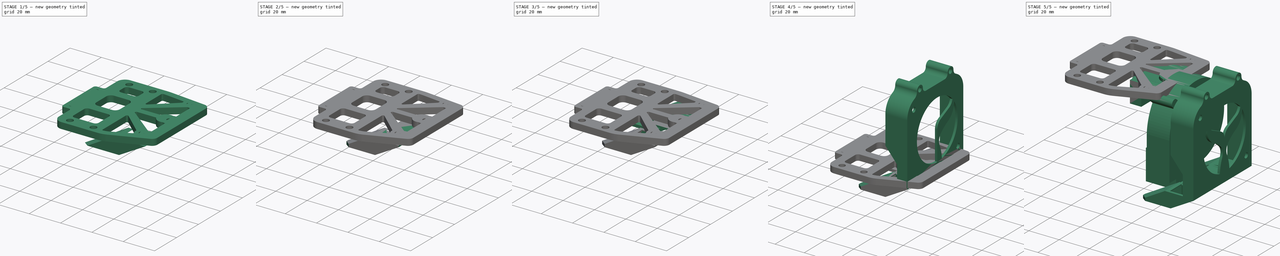
[diagram: build sequence overview — one tinted view per stage of 5, left to right]
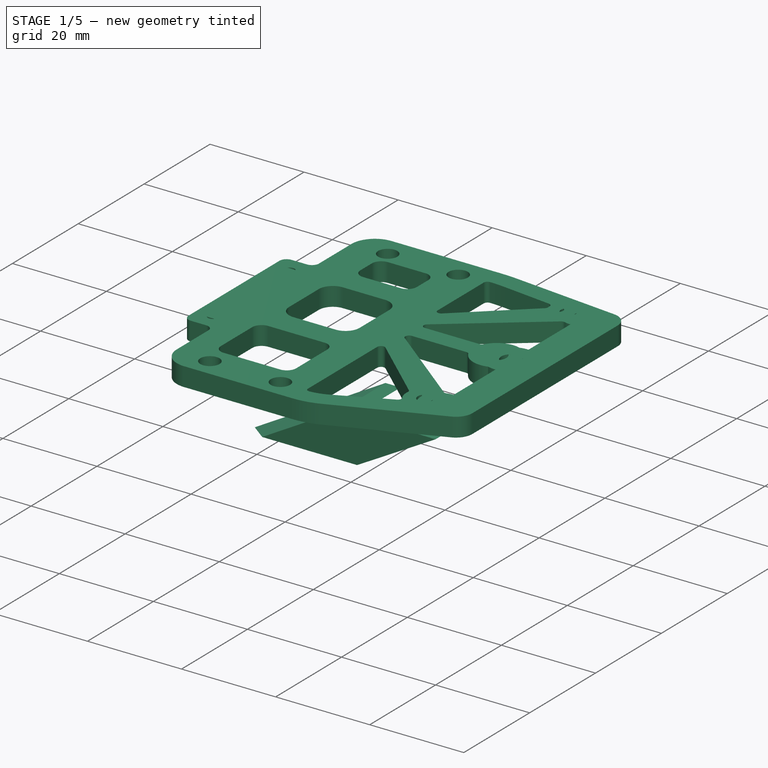
[diagram: stage 1 of 5 — iso view after this stage's code; geometry added in this stage tinted green]
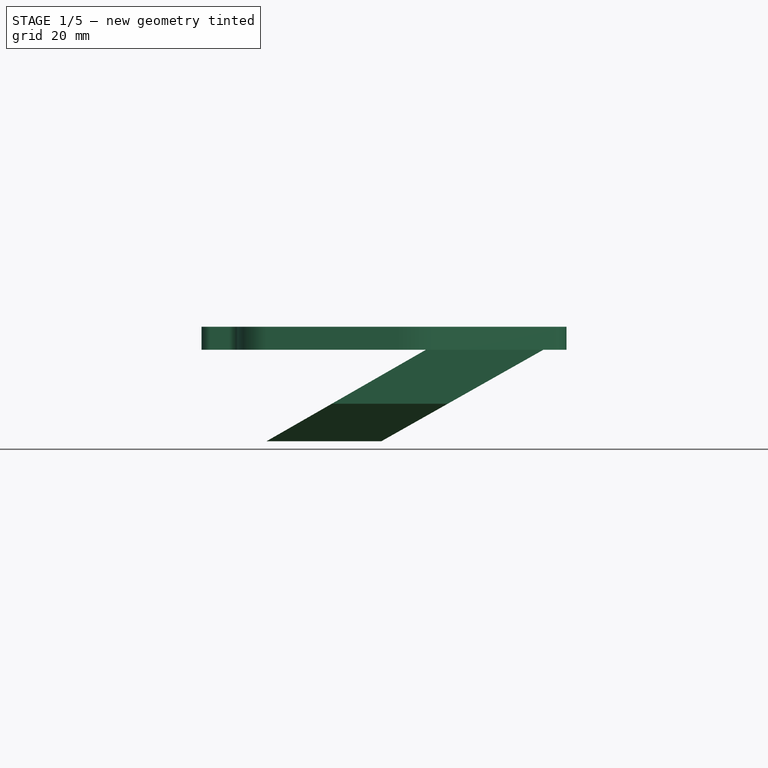
[diagram: stage 1 of 5 — front view after this stage's code; geometry added in this stage tinted green]
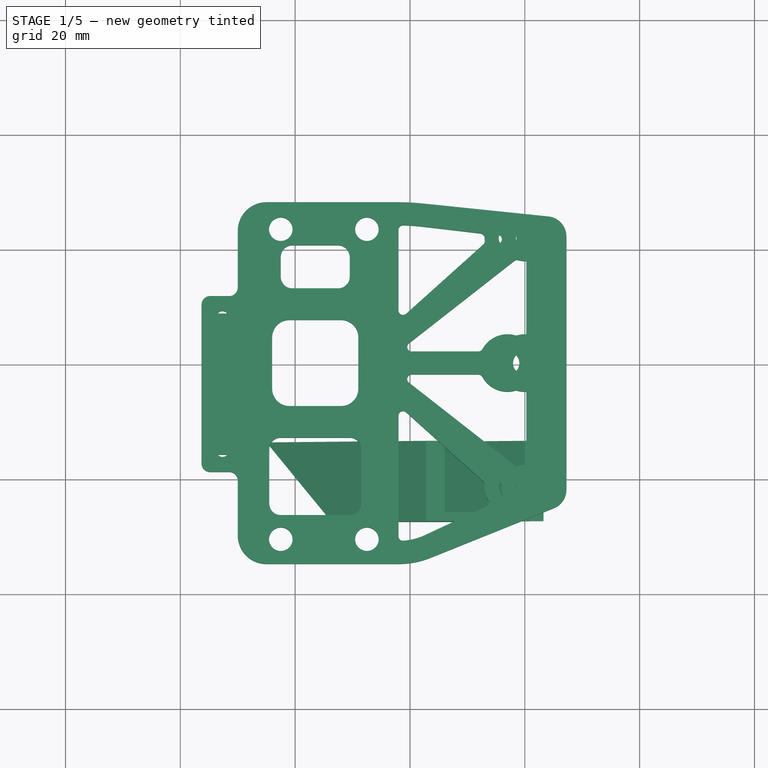
[diagram: stage 1 of 5 — top view after this stage's code; geometry added in this stage tinted green]
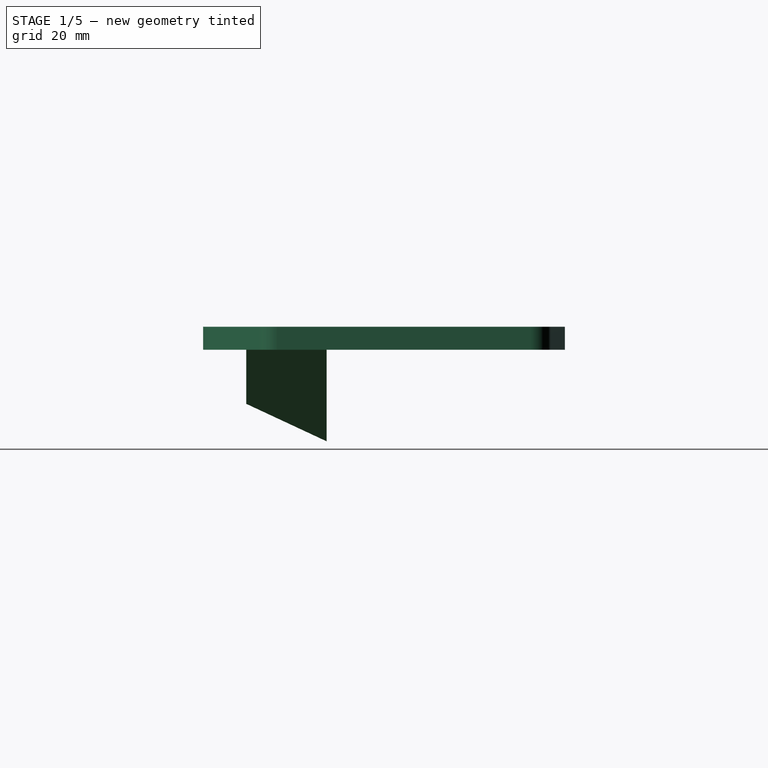
[diagram: stage 1 of 5 — right view after this stage's code; geometry added in this stage tinted green]
FCSTD DOCUMENT  (FreeCAD 0.21RUnknown)
Label: V6火山+5015+HGX+Klicky方案A
License: All rights reserved
LicenseURL: http://en.wikipedia.org/wiki/All_rights_reserved
objects: Sketcher::SketchObject×38, PartDesign::Pocket×19, PartDesign::Pad×18, Part::Feature×13, PartDesign::Body×9, PartDesign::Fillet×6, PartDesign::Chamfer×4, PartDesign::Thickness×2, Part::Fuse×2, PartDesign::Revolution×1, App::Part×1, PartDesign::Mirrored×1, Part::Mirroring×1
note: 164 computed .brp shape members not serialized (recipe doc carries the construction recipe); baked Part::Feature solids carry a one-line shape summary decoded from their .brp

FEATURE [Sketcher::SketchObject] Sketch134
  ExternalGeometry = -> [Pocket068]
  FullyConstrained = true
  MapMode = 5
  Placement = pos=(-3.4e-15,-13.5,3.9e-15) rot=(0,0.707107,0.707107;3.14159rad)
  Support = -> [Pocket068]
  sketch-geometry (7):
    g0: LineSegment StartX=-1.24e-14 StartY=-1.8e-15 StartZ=0 EndX=-1.6 EndY=1e-16 EndZ=0
    g1: LineSegment StartX=-1.6 StartY=1e-16 StartZ=0 EndX=-1.6 EndY=-0.934121 EndZ=0
    g2: LineSegment StartX=-1.6 StartY=-0.934121 StartZ=0 EndX=16.6 EndY=-11.2081 EndZ=0
    g3: LineSegment StartX=16.6 StartY=-11.2081 StartZ=0 EndX=16.6 EndY=-5.3e-15 EndZ=0
    g4: LineSegment StartX=16.6 StartY=-5.3e-15 StartZ=0 EndX=15 EndY=-4.5e-15 EndZ=0
    g5: LineSegment StartX=15 StartY=-4.5e-15 StartZ=0 EndX=15 EndY=-8.4676 EndZ=0
    g6: LineSegment StartX=15 StartY=-8.4676 StartZ=0 EndX=-1.24e-14 EndY=-1.8e-15 EndZ=0
  constraints (16):
    c: Coincident(g-4,g0)
    c: Coincident(g0,g-3)
    c: Coincident(g0,g1)
    c: Coincident(g1,g-8)
    c: Coincident(g1,g2)
    c: PointOnObject(g2,g-8)
    c: Coincident(g2,g3)
    c: PointOnObject(g3,g-6)
    c: Vertical(g3)
    c: Coincident(g3,g4)
    c: Coincident(g4,g-6)
    c: Coincident(g4,g5)
    c: Coincident(g5,g-4)
    c: Coincident(g5,g6)
    c: Coincident(g6,g0)
    c: DistanceX(g4,g3) = 1.6
FEATURE [Sketcher::SketchObject] Sketch135
  FullyConstrained = true
  MapMode = 5
  Placement = pos=(0,0,0) rot=(1,0,0;1.5708rad)
  Support = -> [XZ_Plane024]
  sketch-geometry (8):
    g0: LineSegment StartX=-25 StartY=-15.95 StartZ=0 EndX=-45 EndY=-15.95 EndZ=0
    g1: LineSegment StartX=-45 StartY=-15.95 StartZ=0 EndX=-17.2 EndY=0 EndZ=0
    g2: LineSegment StartX=3.25476 StartY=0 StartZ=0 EndX=-17.2 EndY=0 EndZ=0
    g3: GeomPoint X=-15.6 Y=0 Z=0
    g4: LineSegment StartX=-25 StartY=-15.95 StartZ=0 EndX=-25 EndY=-17.25 EndZ=0
    g5: GeomPoint X=-1.6 Y=0 Z=0
    g6: LineSegment StartX=0 StartY=0 StartZ=0 EndX=0.786541 EndY=-1.39332 EndZ=0
    g7: LineSegment StartX=3.25476 StartY=0 StartZ=0 EndX=-25 EndY=-15.95 EndZ=0
  constraints (22):
    c: PointOnObject(g2,g-1)
    c: Horizontal(g0)
    c: Coincident(g0,g1)
    c: Coincident(g2,g1)
    c: Horizontal(g2)
    c: DistanceX(g0,g0) = 20
    c: PointOnObject(g3,g2)
    c: DistanceX(g1,g3) = 1.6
    c: Vertical(g4)
    c: Distance(g4) = 1.3
    c: PointOnObject(g5,g2)
    c: DistanceX(g5,g-1) = 1.6
    c: DistanceX(g3,g5) = 14
    c: DistanceX(g0,g-1) = 25
    c: Coincident(g6,g-1)
    c: Coincident(g7,g2)
    c: Coincident(g7,g0)
    c: PointOnObject(g6,g7)
    c: Perpendicular(g7,g6)
    c: Distance(g6) = 1.6
    c: DistanceY(g4,g6) = 17.25
    c: Coincident(g0,g4)
FEATURE [PartDesign::Pad] Pad050
  Direction = (0,-1,-2e-16)
  Length = 27.5
  Length2 = 10
  Placement = pos=(0,0,0) rot=(1,0,0;1.5708rad)
  Profile = -> Sketch135
  ReferenceAxis = -> Sketch135 [N_Axis]
  Type = 0
FEATURE [Sketcher::SketchObject] Sketch136
  ExternalGeometry = -> [Pad050]
  FullyConstrained = true
  MapMode = 5
  Placement = pos=(0,0,0) rot=(0.57735,0.57735,0.57735;2.0944rad)
  Support = -> [YZ_Plane024]
  sketch-geometry (11):
    g0: LineSegment StartX=-27.5 StartY=-9.42169 StartZ=0 EndX=-13.5 EndY=-15.95 EndZ=0
    g1: LineSegment StartX=-13.5 StartY=-15.95 StartZ=0 EndX=-13.5 EndY=0 EndZ=0
    g2: LineSegment StartX=-13.5 StartY=0 StartZ=0 EndX=0 EndY=0 EndZ=0
    g3: LineSegment StartX=0 StartY=0 StartZ=0 EndX=-4.9e-15 EndY=-15.95 EndZ=0
    g4: LineSegment StartX=-4.9e-15 StartY=-15.95 StartZ=0 EndX=0 EndY=-16.6571 EndZ=0
    g5: LineSegment StartX=0 StartY=-16.6571 StartZ=0 EndX=-28.2071 EndY=-16.6571 EndZ=0
    g6: LineSegment StartX=-28.2071 StartY=-16.6571 StartZ=0 EndX=-28.2071 EndY=0 EndZ=0
    g7: LineSegment StartX=-28.2071 StartY=0 StartZ=0 EndX=-27.5 EndY=-1.46e-14 EndZ=0
    g8: LineSegment StartX=-27.5 StartY=-1.46e-14 StartZ=0 EndX=-27.5 EndY=-9.42169 EndZ=0
    g9: LineSegment StartX=-27.5 StartY=-15.95 StartZ=0 EndX=-27.5 EndY=-16.6571 EndZ=0
    g10: LineSegment StartX=-27.5 StartY=-15.95 StartZ=0 EndX=-28.2071 EndY=-15.95 EndZ=0
  constraints (31):
    c: PointOnObject(g0,g-3)
    c: PointOnObject(g0,g-4)
    c: Coincident(g0,g1)
    c: PointOnObject(g1,g-1)
    c: Vertical(g1)
    c: Coincident(g1,g2)
    c: Coincident(g2,g-1)
    c: Coincident(g2,g3)
    c: Coincident(g3,g-4)
    c: Coincident(g3,g4)
    c: PointOnObject(g4,g-2)
    c: Coincident(g4,g5)
    c: Horizontal(g5)
    c: Coincident(g5,g6)
    c: PointOnObject(g6,g-1)
    c: Vertical(g6)
    c: Coincident(g6,g7)
    c: Coincident(g7,g-3)
    c: Coincident(g7,g8)
    c: Coincident(g8,g0)
    c: Angle(g0,g8) = 2.00713
    c: Angle(g0,g-4) = 0.436332
    c: DistanceX(g7,g1) = 14
    c: Coincident(g9,g-4)
    c: PointOnObject(g9,g5)
    c: Vertical(g9)
    c: Coincident(g10,g9)
    c: PointOnObject(g10,g6)
    c: Horizontal(g10)
    c: Equal(g9,g10)
    c: Distance(g9,g5) = 1
FEATURE [PartDesign::Pocket] Pocket069
  BaseFeature = -> Pad050
  Direction = (-1,2e-16,-3e-16)
  Length = 50
  Length2 = 20
  Placement = pos=(0,0,0) rot=(1,0,0;1.5708rad)
  Profile = -> Sketch136
  ReferenceAxis = -> Sketch136 [N_Axis]
  Type = 4
FEATURE [PartDesign::Thickness] Thickness001
  Base = -> Pocket069 [Face3,Face6]
  BaseFeature = -> Pocket069
  Intersection = false
  Join = 1
  Mode = 2
  Reversed = true
  SupportTransform = false
  Value = 1.6
FEATURE [Sketcher::SketchObject] Sketch149
  FullyConstrained = true
  MapMode = 5
  Support = -> [XY_Plane026]
  sketch-geometry (7):
    g0: LineSegment StartX=0 StartY=-1.61658 StartZ=0 EndX=1.4 EndY=-0.80829 EndZ=0
    g1: LineSegment StartX=1.4 StartY=-0.80829 StartZ=0 EndX=1.4 EndY=0.80829 EndZ=0
    g2: LineSegment StartX=1.4 StartY=0.80829 StartZ=0 EndX=0 EndY=1.61658 EndZ=0
    g3: LineSegment StartX=0 StartY=1.61658 StartZ=0 EndX=-1.4 EndY=0.80829 EndZ=0
    g4: LineSegment StartX=-1.4 StartY=0.80829 StartZ=0 EndX=-1.4 EndY=-0.80829 EndZ=0
    g5: LineSegment StartX=-1.4 StartY=-0.80829 StartZ=0 EndX=0 EndY=-1.61658 EndZ=0
    g6: Circle CenterX=0 CenterY=0 CenterZ=0 NormalX=0 NormalY=0 NormalZ=1 AngleXU=0 Radius=1.61658
  constraints (17):
    c: Coincident(g0,g1)
    c: Coincident(g1,g2)
    c: Coincident(g2,g3)
    c: Coincident(g3,g4)
    c: Coincident(g4,g5)
    c: Coincident(g5,g0)
    c: Equal(g0, g1-g5) x5
    c: PointOnObject(g0,g6)
    c: PointOnObject(g1,g6)
    c: PointOnObject(g2,g6)
    c: PointOnObject(g3,g6)
    c: PointOnObject(g4,g6)
    c: PointOnObject(g5,g6)
    c: Coincident(g6,g-1)
    c: PointOnObject(g5,g-2)
    c: DistanceY(g0,g2) = 3.23316
    c: DistanceX(g4,g0) = 2.8
FEATURE [PartDesign::Body] Body021  label="Body"
  Group = -> [Sketch149]
  Origin = -> Origin026
FEATURE [Sketcher::SketchObject] Sketch152
  FullyConstrained = false
  MapMode = 5
  Support = -> [XY_Plane027]
  sketch-geometry (41):
    g0: LineSegment StartX=-22 StartY=28 StartZ=0 EndX=-45 EndY=28 EndZ=0
    g1: LineSegment StartX=-56.3 StartY=7.1 StartZ=0 EndX=-56.3 EndY=-17.47 EndZ=0
    g2: LineSegment StartX=-45 StartY=-35 StartZ=0 EndX=-22 EndY=-35 EndZ=0
    g3: Circle CenterX=0 CenterY=21.75 CenterZ=0 NormalX=0 NormalY=0 NormalZ=1 AngleXU=0 Radius=1.55
    g4: Circle CenterX=0 CenterY=-21.75 CenterZ=0 NormalX=0 NormalY=0 NormalZ=1 AngleXU=0 Radius=1.55
    g5: LineSegment StartX=-16.4011 StartY=-33.9159 StartZ=0 EndX=5.0564 EndY=-25.2828 EndZ=0
    g6: LineSegment StartX=7.25 StartY=22.0357 StartZ=0 EndX=7.25 EndY=-22.0357 EndZ=0
    g7: ArcOfCircle CenterX=3.75 CenterY=22.0357 CenterZ=0 NormalX=0 NormalY=0 NormalZ=1 AngleXU=0 Radius=3.5 StartAngle=-9e-16 EndAngle=1.46793
    g8: ArcOfCircle CenterX=3.75 CenterY=-22.0357 CenterZ=0 NormalX=0 NormalY=0 NormalZ=1 AngleXU=0 Radius=3.5 StartAngle=5.09491 EndAngle=6.28319
    g9: Circle CenterX=0 CenterY=0 CenterZ=0 NormalX=0 NormalY=0 NormalZ=1 AngleXU=0 Radius=2.05
    g10: Circle CenterX=-42.5 CenterY=-30.7 CenterZ=0 NormalX=0 NormalY=0 NormalZ=1 AngleXU=0 Radius=2.05
    g11: Circle CenterX=-27.5 CenterY=-30.7 CenterZ=0 NormalX=0 NormalY=0 NormalZ=1 AngleXU=0 Radius=2.05
    g12: Circle CenterX=-42.5 CenterY=23.3 CenterZ=0 NormalX=0 NormalY=0 NormalZ=1 AngleXU=0 Radius=2.05
    g13: Circle CenterX=-27.5 CenterY=23.3 CenterZ=0 NormalX=0 NormalY=0 NormalZ=1 AngleXU=0 Radius=2.05
    g14: LineSegment StartX=33.6714 StartY=25.5172 StartZ=0 EndX=33.6714 EndY=-25.2828 EndZ=0
    g15: LineSegment StartX=33.6714 StartY=-25.2828 StartZ=0 EndX=58.1714 EndY=-25.2828 EndZ=0
    g16: LineSegment StartX=58.1714 StartY=-25.2828 StartZ=0 EndX=58.1714 EndY=25.5172 EndZ=0
    g17: LineSegment StartX=58.1714 StartY=25.5172 StartZ=0 EndX=33.6714 EndY=25.5172 EndZ=0
    g18: LineSegment StartX=58.1714 StartY=-21.7828 StartZ=0 EndX=54.6714 EndY=-25.2828 EndZ=0
    g19: LineSegment StartX=54.6714 StartY=25.5172 StartZ=0 EndX=58.1714 EndY=22.0172 EndZ=0
    g20: Circle CenterX=-52.65 CenterY=5 CenterZ=0 NormalX=0 NormalY=0 NormalZ=1 AngleXU=0 Radius=1.05
    g21: Circle CenterX=-52.65 CenterY=-15.32 CenterZ=0 NormalX=0 NormalY=0 NormalZ=1 AngleXU=0 Radius=1.05
    g22: Circle CenterX=-52.65 CenterY=-15.32 CenterZ=0 NormalX=0 NormalY=0 NormalZ=1 AngleXU=0 Radius=1.65
    g23: GeomPoint X=-51 Y=-15.32 Z=0
    g24: GeomPoint X=-54.3 Y=-15.32 Z=0
    g25: LineSegment StartX=-50 StartY=-20.47 StartZ=0 EndX=-50 EndY=-30 EndZ=0
    g26: LineSegment StartX=-51.5 StartY=-18.97 StartZ=0 EndX=-54.8 EndY=-18.97 EndZ=0
    g27: LineSegment StartX=-50 StartY=23 StartZ=0 EndX=-50 EndY=10.1 EndZ=0
    g28: LineSegment StartX=-51.5 StartY=8.6 StartZ=0 EndX=-54.8 EndY=8.6 EndZ=0
    g29: ArcOfCircle CenterX=-45 CenterY=-30 CenterZ=0 NormalX=0 NormalY=0 NormalZ=1 AngleXU=0 Radius=5 StartAngle=3.14159 EndAngle=4.71239
    g30: ArcOfCircle CenterX=-51.5 CenterY=-20.47 CenterZ=0 NormalX=0 NormalY=0 NormalZ=1 AngleXU=0 Radius=1.5 StartAngle=0 EndAngle=1.5708
    g31: ArcOfCircle CenterX=-54.8 CenterY=-17.47 CenterZ=0 NormalX=0 NormalY=0 NormalZ=1 AngleXU=0 Radius=1.5 StartAngle=3.14159 EndAngle=4.71239
    g32: ArcOfCircle CenterX=-54.8 CenterY=7.1 CenterZ=0 NormalX=0 NormalY=0 NormalZ=1 AngleXU=0 Radius=1.5 StartAngle=1.5708 EndAngle=3.14159
    g33: ArcOfCircle CenterX=-45 CenterY=23 CenterZ=0 NormalX=0 NormalY=0 NormalZ=1 AngleXU=0 Radius=5 StartAngle=1.5708 EndAngle=3.14159
    g34: ArcOfCircle CenterX=-51.5 CenterY=10.1 CenterZ=0 NormalX=0 NormalY=0 NormalZ=1 AngleXU=0 Radius=1.5 StartAngle=4.71239 EndAngle=6.28319
    g35: GeomPoint X=-52.65 Y=-16.97 Z=0
    g36: Circle CenterX=-52.65 CenterY=5 CenterZ=0 NormalX=0 NormalY=0 NormalZ=1 AngleXU=0 Radius=1.6
    g37: GeomPoint X=-52.65 Y=6.6 Z=0
    g38: ArcOfCircle CenterX=-22 CenterY=-20 CenterZ=0 NormalX=0 NormalY=0 NormalZ=1 AngleXU=0 Radius=15 StartAngle=4.71239 EndAngle=5.09491
    g39: ArcOfCircle CenterX=-22 CenterY=-12 CenterZ=0 NormalX=0 NormalY=0 NormalZ=1 AngleXU=0 Radius=40 StartAngle=1.46793 EndAngle=1.5708
    g40: LineSegment StartX=-17.8925 StartY=27.7885 StartZ=0 EndX=4.10941 EndY=25.5172 EndZ=0
  constraints (103):
    c: Horizontal(g0)
    c: Vertical(g1)
    c: Horizontal(g2)
    c: Symmetric(g4,g3,g-1)
    c: PointOnObject(g4,g-2)
    c: Equal(g3,g4)
    c: DistanceY(g4,g3) = 43.5
    c: Diameter(g4) = 3.1
    c: Tangent(g6,g7) = 1.5708
    c: Tangent(g6,g8) = 1.5708
    c: Tangent(g5,g8) = -1.5708
    c: Equal(g7,g8)
    c: Radius(g8) = 3.5
    c: Symmetric(g6,g6,g-1)
    c: DistanceX(g-1,g6) = 7.25
    c: Coincident(g9,g-1)
    c: Diameter(g9) = 4.1
    c: Equal(g11,g10)
    c: Equal(g10,g12)
    c: Equal(g13,g12)
    c: Diameter(g11) = 4.1
    c: Horizontal(g10,g11)
    c: Horizontal(g12,g13)
    c: DistanceY(g13,g0) = 4.7
    c: DistanceX(g13,g0) = 5.5
    c: DistanceX(g12,g13) = 15
    c: DistanceX(g10,g11) = 15
    c: Vertical(g14)
    c: Coincident(g14,g15)
    c: Horizontal(g15)
    c: Coincident(g15,g16)
    c: Vertical(g16)
    c: Coincident(g16,g17)
    c: Coincident(g17,g14)
    c: Horizontal(g17)
    c: DistanceY(g16,g16) = 50.8
    c: DistanceX(g15,g15) = 24.5
    c: PointOnObject(g18,g16)
    c: PointOnObject(g18,g15)
    c: PointOnObject(g19,g16)
    c: Angle(g15,g18) = 0.785398
    c: DistanceY(g15,g18) = 3.5
    c: Angle(g16,g19) = 0.785398
    c: PointOnObject(g19,g17)
    c: DistanceY(g19,g16) = 3.5
    c: Equal(g20,g21)
    c: Diameter(g21) = 2.1
    c: Coincident(g22,g21)
    c: Diameter(g22) = 3.3
    c: PointOnObject(g23,g22)
    c: Horizontal(g22,g23)
    c: PointOnObject(g24,g22)
    c: Horizontal(g22,g24)
    c: DistanceY(g21,g20) = 20.32
    c: Horizontal(g18,g5)
    c: Vertical(g20,g21)
    c: DistanceY(g-1,g20) = 5
    c: Vertical(g25)
    c: Horizontal(g26)
    c: Vertical(g27)
    c: Horizontal(g28)
    c: DistanceY(g-1,g0) = 28
    c: Tangent(g25,g29) = -1.5708
    c: Tangent(g2,g29) = -1.5708
    c: Tangent(g26,g30) = -1.5708
    c: Tangent(g25,g30) = 1.5708
    c: Tangent(g1,g31) = -1.5708
    c: Tangent(g26,g31) = 1.5708
    c: Tangent(g28,g32) = -1.5708
    c: Tangent(g1,g32) = -1.5708
    c: Tangent(g0,g33) = -1.5708
    c: Tangent(g27,g33) = -1.5708
    c: Tangent(g27,g34) = 1.5708
    c: Tangent(g28,g34) = 1.5708
    c: DistanceX(g27,g0) = 28
    c: Equal(g29,g33)
    c: Equal(g32,g31)
    c: Equal(g34,g30)
    c: Radius(g29) = 5
    c: PointOnObject(g35,g22)
    c: Vertical(g35,g21)
    c: DistanceX(g23,g25) = 1
    c: Radius(g30) = 1.5
    c: Radius(g31) = 1.5
    c: DistanceY(g26,g35) = 2
    c: DistanceX(g1,g24) = 2
    c: Diameter(g36) = 3.2
    c: PointOnObject(g37,g36)
    c: Vertical(g36,g37)
    c: Coincident(g20,g36)
    c: DistanceY(g37,g28) = 2
    c: Tangent(g5,g38) = -1.5708
    c: Tangent(g2,g38) = -1.5708
    c: DistanceX(g2) = -45
    c: DistanceY(g2) = -35
    c: DistanceX(g2,g2) = 23
    c: Vertical(g25,g27)
    c: Tangent(g40,g39) = 1.5708
    c: Tangent(g40,g7) = 1.5708
    c: Tangent(g39,g0) = -1.5708
    c: DistanceY(g5,g7) = 50.8
    c: Radius(g39) = 40
    c: Radius(g38) = 15
FEATURE [PartDesign::Pad] Pad060
  Direction = (0,0,1)
  Length = 4
  Length2 = 10
  Profile = -> Sketch152
  ReferenceAxis = -> Sketch152 [N_Axis]
  Type = 0
FEATURE [Sketcher::SketchObject] Sketch153
  FullyConstrained = true
  MapMode = 5
  Placement = pos=(0,0,4) rot=(0,0,1;0rad)
  Support = -> [Pad060]
  sketch-geometry (30):
    g0: LineSegment StartX=-42.5 StartY=-26.5 StartZ=0 EndX=-30.5 EndY=-26.5 EndZ=0
    g1: LineSegment StartX=-28.5 StartY=-24.5 StartZ=0 EndX=-28.5 EndY=-15 EndZ=0
    g2: LineSegment StartX=-30.5 StartY=-13 StartZ=0 EndX=-42.5 EndY=-13 EndZ=0
    g3: LineSegment StartX=-44.5 StartY=-15 StartZ=0 EndX=-44.5 EndY=-24.5 EndZ=0
    g4: ArcOfCircle CenterX=-42.5 CenterY=-24.5 CenterZ=0 NormalX=0 NormalY=0 NormalZ=1 AngleXU=0 Radius=2 StartAngle=3.14159 EndAngle=4.71239
    g5: ArcOfCircle CenterX=-30.5 CenterY=-24.5 CenterZ=0 NormalX=0 NormalY=0 NormalZ=1 AngleXU=0 Radius=2 StartAngle=4.71239 EndAngle=6.28319
    g6: ArcOfCircle CenterX=-30.5 CenterY=-15 CenterZ=0 NormalX=0 NormalY=0 NormalZ=1 AngleXU=0 Radius=2 StartAngle=0 EndAngle=1.5708
    g7: ArcOfCircle CenterX=-42.5 CenterY=-15 CenterZ=0 NormalX=0 NormalY=0 NormalZ=1 AngleXU=0 Radius=2 StartAngle=1.5708 EndAngle=3.14159
    g8: GeomPoint X=-44.5 Y=-26.5 Z=0
    g9: GeomPoint X=-28.5 Y=-13 Z=0
    g10: LineSegment StartX=-41 StartY=-7.5 StartZ=0 EndX=-32 EndY=-7.5 EndZ=0
    g11: LineSegment StartX=-29 StartY=-4.5 StartZ=0 EndX=-29 EndY=4.5 EndZ=0
    g12: LineSegment StartX=-32 StartY=7.5 StartZ=0 EndX=-41 EndY=7.5 EndZ=0
    g13: LineSegment StartX=-44 StartY=4.5 StartZ=0 EndX=-44 EndY=-4.5 EndZ=0
    g14: ArcOfCircle CenterX=-41 CenterY=-4.5 CenterZ=0 NormalX=0 NormalY=0 NormalZ=1 AngleXU=0 Radius=3 StartAngle=3.14159 EndAngle=4.71239
    g15: ArcOfCircle CenterX=-32 CenterY=-4.5 CenterZ=0 NormalX=0 NormalY=0 NormalZ=1 AngleXU=0 Radius=3 StartAngle=4.71239 EndAngle=6.28319
    g16: ArcOfCircle CenterX=-32 CenterY=4.5 CenterZ=0 NormalX=0 NormalY=0 NormalZ=1 AngleXU=0 Radius=3 StartAngle=0 EndAngle=1.5708
    g17: ArcOfCircle CenterX=-41 CenterY=4.5 CenterZ=0 NormalX=0 NormalY=0 NormalZ=1 AngleXU=0 Radius=3 StartAngle=1.5708 EndAngle=3.14159
    g18: GeomPoint X=-44 Y=-7.5 Z=0
    g19: GeomPoint X=-29 Y=7.5 Z=0
    g20: LineSegment StartX=-40.5 StartY=13 StartZ=0 EndX=-32.5 EndY=13 EndZ=0
    g21: LineSegment StartX=-30.5 StartY=15 StartZ=0 EndX=-30.5 EndY=18.5 EndZ=0
    g22: LineSegment StartX=-32.5 StartY=20.5 StartZ=0 EndX=-40.5 EndY=20.5 EndZ=0
    g23: LineSegment StartX=-42.5 StartY=18.5 StartZ=0 EndX=-42.5 EndY=15 EndZ=0
    g24: ArcOfCircle CenterX=-40.5 CenterY=15 CenterZ=0 NormalX=0 NormalY=0 NormalZ=1 AngleXU=0 Radius=2 StartAngle=3.14159 EndAngle=4.71239
    g25: ArcOfCircle CenterX=-32.5 CenterY=15 CenterZ=0 NormalX=0 NormalY=0 NormalZ=1 AngleXU=0 Radius=2 StartAngle=4.71239 EndAngle=6.28319
    g26: ArcOfCircle CenterX=-32.5 CenterY=18.5 CenterZ=0 NormalX=0 NormalY=0 NormalZ=1 AngleXU=0 Radius=2 StartAngle=0 EndAngle=1.5708
    g27: ArcOfCircle CenterX=-40.5 CenterY=18.5 CenterZ=0 NormalX=0 NormalY=0 NormalZ=1 AngleXU=0 Radius=2 StartAngle=1.5708 EndAngle=3.14159
    g28: GeomPoint X=-42.5 Y=13 Z=0
    g29: GeomPoint X=-30.5 Y=20.5 Z=0
  constraints (72):
    c: Tangent(g0,g4) = -1.5708
    c: Tangent(g0,g5) = -1.5708
    c: Tangent(g1,g5) = -1.5708
    c: Tangent(g1,g6) = -1.5708
    c: Tangent(g2,g6) = -1.5708
    c: Tangent(g2,g7) = -1.5708
    c: Tangent(g3,g7) = -1.5708
    c: Tangent(g3,g4) = -1.5708
    c: Horizontal(g0)
    c: Horizontal(g2)
    c: Vertical(g1)
    c: Vertical(g3)
    c: Equal(g4,g5)
    c: Equal(g5,g6)
    c: Equal(g6,g7)
    c: PointOnObject(g8,g0)
    c: PointOnObject(g8,g3)
    c: PointOnObject(g9,g1)
    c: PointOnObject(g9,g2)
    c: Radius(g5) = 2
    c: DistanceX(g0,g0) = 12
    c: DistanceY(g1,g1) = 9.5
    c: Tangent(g10,g14) = -1.5708
    c: Tangent(g10,g15) = -1.5708
    c: Tangent(g11,g15) = -1.5708
    c: Tangent(g11,g16) = -1.5708
    c: Tangent(g12,g16) = -1.5708
    c: Tangent(g12,g17) = -1.5708
    c: Tangent(g13,g17) = -1.5708
    c: Tangent(g13,g14) = -1.5708
    c: Horizontal(g10)
    c: Horizontal(g12)
    c: Vertical(g11)
    c: Vertical(g13)
    c: Equal(g14,g15)
    c: Equal(g15,g16)
    c: Equal(g16,g17)
    c: PointOnObject(g18,g10)
    c: PointOnObject(g18,g13)
    c: PointOnObject(g19,g11)
    c: PointOnObject(g19,g12)
    c: Radius(g15) = 3
    c: DistanceY(g11,g11) = 9
    c: DistanceX(g10,g10) = 9
    c: Tangent(g20,g24) = -1.5708
    c: Tangent(g20,g25) = -1.5708
    c: Tangent(g21,g25) = -1.5708
    c: Tangent(g21,g26) = -1.5708
    c: Tangent(g22,g26) = -1.5708
    c: Tangent(g22,g27) = -1.5708
    c: Tangent(g23,g27) = -1.5708
    c: Tangent(g23,g24) = -1.5708
    c: Horizontal(g20)
    c: Horizontal(g22)
    c: Vertical(g21)
    c: Vertical(g23)
    c: Equal(g24,g25)
    c: Equal(g25,g26)
    c: Equal(g26,g27)
    c: PointOnObject(g28,g20)
    c: PointOnObject(g28,g23)
    c: PointOnObject(g29,g21)
    c: PointOnObject(g29,g22)
    c: Radius(g25) = 2
    c: DistanceX(g22,g22) = 8
    c: DistanceY(g21,g21) = 3.5
    c: DistanceY(g9,g18) = 5.5
    c: DistanceX(g18,g9) = 15.5
    c: DistanceY(g19,g28) = 5.5
    c: DistanceX(g28,g19) = 13.5
    c: DistanceX(g19,g-1) = 29
    c: DistanceY(g-1,g19) = 7.5
FEATURE [PartDesign::Pocket] Pocket075
  BaseFeature = -> Pad060
  Direction = (0,0,-1)
  Length = 5
  Length2 = 5
  Profile = -> Sketch153
  ReferenceAxis = -> Sketch153 [N_Axis]
  Type = 1
FEATURE [Sketcher::SketchObject] Sketch154
  ExternalGeometry = -> [Pocket075]
  FullyConstrained = false
  MapMode = 5
  Placement = pos=(0,0,4) rot=(0,0,1;0rad)
  Support = -> [Pocket075]
  sketch-geometry (35):
    g0: ArcOfCircle CenterX=0 CenterY=0 CenterZ=0 NormalX=0 NormalY=0 NormalZ=1 AngleXU=0 Radius=5 StartAngle=3.55311 EndAngle=5.41997
    g1: ArcOfCircle CenterX=0 CenterY=-21.75 CenterZ=0 NormalX=0 NormalY=0 NormalZ=1 AngleXU=0 Radius=4 StartAngle=0.622368 EndAngle=1.95414
    g2: ArcOfCircle CenterX=0 CenterY=21.75 CenterZ=0 NormalX=0 NormalY=0 NormalZ=1 AngleXU=0 Radius=4 StartAngle=2.99639 EndAngle=3.28185
    g3: LineSegment StartX=3.25 StartY=19.4182 StartZ=0 EndX=3.25 EndY=3.79967 EndZ=0
    g4: LineSegment StartX=-3.95791 StartY=22.3288 StartZ=0 EndX=-18.3033 EndY=23.8097 EndZ=0
    g5: LineSegment StartX=-22 StartY=24 StartZ=0 EndX=-22 EndY=7.07858 EndZ=0
    g6: LineSegment StartX=-22 StartY=7.07858 StartZ=0 EndX=-3.96072 EndY=21.1908 EndZ=0
    g7: LineSegment StartX=-1.49608 StartY=18.0403 StartZ=0 EndX=-22 EndY=2 EndZ=0
    g8: LineSegment StartX=-22 StartY=2 StartZ=0 EndX=-4.58258 EndY=2 EndZ=0
    g9: LineSegment StartX=3.25 StartY=-3.79967 StartZ=0 EndX=3.25 EndY=-19.4182 EndZ=0
    g10: LineSegment StartX=-1.49608 StartY=-18.0403 StartZ=0 EndX=-22 EndY=-2 EndZ=0
    g11: LineSegment StartX=-22 StartY=-2 StartZ=0 EndX=-4.58258 EndY=-2 EndZ=0
    g12: LineSegment StartX=-17.8942 StartY=-30.205 StartZ=0 EndX=-3.11532 EndY=-24.2589 EndZ=0
    g13: LineSegment StartX=-3.96072 StartY=-21.1908 StartZ=0 EndX=-22 EndY=-7.07858 EndZ=0
    g14: LineSegment StartX=-22 StartY=-7.07858 StartZ=0 EndX=-22 EndY=-31 EndZ=0
    g15: LineSegment StartX=-22 StartY=2 StartZ=0 EndX=-22 EndY=0 EndZ=0
    g16: LineSegment StartX=-22 StartY=0 StartZ=0 EndX=-22 EndY=-2 EndZ=0
    g17: LineSegment StartX=-9.95646 StartY=11.4217 StartZ=0 EndX=-11.1888 EndY=12.997 EndZ=0
    g18: LineSegment StartX=-11.1888 StartY=12.997 StartZ=0 EndX=-12.4211 EndY=14.5722 EndZ=0
    g19: LineSegment StartX=0 StartY=21.75 StartZ=0 EndX=-11.1888 EndY=12.997 EndZ=0
    g20: LineSegment StartX=-9.25002 StartY=-11.9744 StartZ=0 EndX=-10.4823 EndY=-13.5496 EndZ=0
    g21: LineSegment StartX=-10.4823 StartY=-13.5496 StartZ=0 EndX=-11.7147 EndY=-15.1249 EndZ=0
    g22: LineSegment StartX=-10.4823 StartY=-13.5496 StartZ=0 EndX=0 EndY=-21.75 EndZ=0
    g23: ArcOfCircle CenterX=-22 CenterY=-20 CenterZ=0 NormalX=0 NormalY=0 NormalZ=1 AngleXU=0 Radius=11 StartAngle=4.71239 EndAngle=5.09491
    g24: ArcOfCircle CenterX=-22 CenterY=-12 CenterZ=0 NormalX=0 NormalY=0 NormalZ=1 AngleXU=0 Radius=36 StartAngle=1.46793 EndAngle=1.5708
    g25: LineSegment StartX=-22 StartY=-35 StartZ=0 EndX=-22 EndY=-35 EndZ=0
    g26: LineSegment StartX=-22 StartY=-35 StartZ=0 EndX=-22 EndY=-33 EndZ=0
    g27: LineSegment StartX=-22 StartY=-33 StartZ=0 EndX=-22 EndY=-31 EndZ=0
    g28: LineSegment StartX=-22 StartY=28 StartZ=0 EndX=-22 EndY=26 EndZ=0
    g29: LineSegment StartX=-22 StartY=26 StartZ=0 EndX=-22 EndY=24 EndZ=0
    g30: LineSegment StartX=3.25 StartY=-3.79967 StartZ=0 EndX=5.25 EndY=-3.79967 EndZ=0
    g31: LineSegment StartX=5.25 StartY=-3.79967 StartZ=0 EndX=7.25 EndY=-3.79967 EndZ=0
    g32: ArcOfCircle CenterX=0 CenterY=0 CenterZ=0 NormalX=0 NormalY=0 NormalZ=1 AngleXU=0 Radius=5 StartAngle=0.863212 EndAngle=2.73008
    g33: ArcOfCircle CenterX=0 CenterY=21.75 CenterZ=0 NormalX=0 NormalY=0 NormalZ=1 AngleXU=0 Radius=4 StartAngle=4.32905 EndAngle=5.66082
    g34: ArcOfCircle CenterX=0 CenterY=-21.75 CenterZ=0 NormalX=0 NormalY=0 NormalZ=1 AngleXU=0 Radius=4 StartAngle=3.00133 EndAngle=3.81959
  constraints (96):
    c: Coincident(g0,g-3)
    c: Coincident(g1,g-5)
    c: Coincident(g2,g-4)
    c: Vertical(g3)
    c: Vertical(g5)
    c: Coincident(g5,g6)
    c: Coincident(g7,g8)
    c: Horizontal(g8)
    c: Coincident(g10,g11)
    c: Horizontal(g11)
    c: PointOnObject(g13,g1)
    c: Coincident(g13,g14)
    c: Vertical(g14)
    c: Vertical(g6,g7)
    c: Vertical(g8,g10)
    c: Vertical(g10,g13)
    c: Parallel(g10,g13)
    c: Parallel(g6,g7)
    c: Coincident(g15,g7)
    c: PointOnObject(g15,g-1)
    c: Coincident(g16,g15)
    c: Coincident(g16,g10)
    c: Vertical(g16)
    c: Equal(g15,g16)
    c: PointOnObject(g17,g7)
    c: Coincident(g17,g18)
    c: PointOnObject(g18,g6)
    c: Parallel(g18,g17)
    c: Perpendicular(g17,g7)
    c: Equal(g17,g18)
    c: Coincident(g19,g2)
    c: Coincident(g19,g17)
    c: Perpendicular(g17,g19)
    c: PointOnObject(g20,g10)
    c: Coincident(g20,g21)
    c: PointOnObject(g21,g13)
    c: Equal(g20,g21)
    c: Parallel(g20,g21)
    c: Perpendicular(g20,g10)
    c: Coincident(g22,g20)
    c: Coincident(g22,g1)
    c: Perpendicular(g21,g22)
    c: Parallel(g12,g-8)
    c: Tangent(g12,g23) = -1.5708
    c: Coincident(g23,g14)
    c: Coincident(g23,g-9)
    c: Distance(g21,g20) = 4
    c: Equal(g21,g18)
    c: Equal(g16,g20)
    c: Distance(g1,g12) = 4
    c: Distance(g2,g3) = 4
    c: Tangent(g4,g24) = -1.5708
    c: Coincident(g5,g24)
    c: Parallel(g-10,g4)
    c: Coincident(g24,g-11)
    c: Vertical(g5,g-11)
    c: Tangent(g-9,g25) = 1.5708
    c: Coincident(g25,g26)
    c: Vertical(g26)
    c: Coincident(g26,g27)
    c: Equal(g27,g26)
    c: Equal(g21,g27)
    c: Coincident(g14,g27)
    c: Coincident(g-11,g28)
    c: Coincident(g28,g29)
    c: Coincident(g29,g5)
    c: Equal(g28,g29)
    c: Vertical(g28)
    c: Equal(g18,g29)
    c: Distance(g0,g11) = 5
    c: Tangent(g3,g9)
    c: Coincident(g9,g30)
    c: Horizontal(g30)
    c: Coincident(g30,g31)
    c: PointOnObject(g31,g-12)
    c: Horizontal(g31)
    c: Equal(g30,g31)
    c: Equal(g30,g20)
    c: Coincident(g32,g8)
    c: Coincident(g0,g11)
    c: Equal(g0,g32)
    c: Coincident(g0,g9)
    c: Coincident(g32,g3)
    c: Coincident(g0,g32)
    c: Coincident(g33,g3)
    c: Coincident(g2,g4)
    c: Equal(g2,g33)
    c: Coincident(g33,g7)
    c: Coincident(g2,g33)
    c: Coincident(g2,g6)
    c: Coincident(g34,g12)
    c: Coincident(g1,g9)
    c: Equal(g1,g34)
    c: Coincident(g1,g10)
    c: Coincident(g1,g34)
    c: PointOnObject(g34,g13)
FEATURE [PartDesign::Pocket] Pocket076
  BaseFeature = -> Pocket075
  Direction = (0,0,-1)
  Length = 5
  Length2 = 5
  Profile = -> Sketch154
  ReferenceAxis = -> Sketch154 [N_Axis]
  Type = 1
FEATURE [PartDesign::Fillet] Fillet004
  Base = -> Pocket076 [Edge178,Edge185,Edge179,Edge182,Edge180,Edge209,Edge210,Edge213,Edge211,Edge212,Edge217,Edge216,Edge215,Edge218,Edge188,Edge184,Edge186,Edge187]
  BaseFeature = -> Pocket076
  Radius = 0.8
  SupportTransform = false
  UseAllEdges = false
FEATURE [PartDesign::Body] Body022  label="HGX安装座+3mm"
  Group = -> [Sketch152,Pad060,Sketch153,Pocket075,Sketch154,Pocket076,Fillet004]
  Origin = -> Origin027
  Placement = pos=(0,0,8.1) rot=(0,0,1;0rad)
  Tip = -> Fillet004
FEATURE [Sketcher::SketchObject] Sketch155
  FullyConstrained = false
  MapMode = 5
  Support = -> [XY_Plane028]
  sketch-geometry (41):
    g0: LineSegment StartX=-22 StartY=28 StartZ=0 EndX=-45 EndY=28 EndZ=0
    g1: LineSegment StartX=-56.3 StartY=10.15 StartZ=0 EndX=-56.3 EndY=-14.47 EndZ=0
    g2: LineSegment StartX=-45 StartY=-35 StartZ=0 EndX=-22 EndY=-35 EndZ=0
    g3: Circle CenterX=-3 CenterY=21.75 CenterZ=0 NormalX=0 NormalY=0 NormalZ=1 AngleXU=0 Radius=1.55
    g4: Circle CenterX=-3 CenterY=-21.75 CenterZ=0 NormalX=0 NormalY=0 NormalZ=1 AngleXU=0 Radius=1.55
    g5: LineSegment StartX=-15.6581 StartY=-33.5934 StartZ=0 EndX=2.22978 EndY=-25.2479 EndZ=0
    g6: LineSegment StartX=4.25 StartY=22.0761 StartZ=0 EndX=4.25 EndY=-22.0761 EndZ=0
    g7: ArcOfCircle CenterX=0.75 CenterY=22.0761 CenterZ=0 NormalX=0 NormalY=0 NormalZ=1 AngleXU=0 Radius=3.5 StartAngle=0 EndAngle=1.45373
    g8: ArcOfCircle CenterX=0.75 CenterY=-22.0761 CenterZ=0 NormalX=0 NormalY=0 NormalZ=1 AngleXU=0 Radius=3.5 StartAngle=5.14892 EndAngle=6.28319
    g9: Circle CenterX=-3 CenterY=0 CenterZ=0 NormalX=0 NormalY=0 NormalZ=1 AngleXU=0 Radius=2.05
    g10: Circle CenterX=-42.5 CenterY=-30.7 CenterZ=0 NormalX=0 NormalY=0 NormalZ=1 AngleXU=0 Radius=2.05
    g11: Circle CenterX=-27.5 CenterY=-30.7 CenterZ=0 NormalX=0 NormalY=0 NormalZ=1 AngleXU=0 Radius=2.05
    g12: Circle CenterX=-42.5 CenterY=23.3 CenterZ=0 NormalX=0 NormalY=0 NormalZ=1 AngleXU=0 Radius=2.05
    g13: Circle CenterX=-27.5 CenterY=23.3 CenterZ=0 NormalX=0 NormalY=0 NormalZ=1 AngleXU=0 Radius=2.05
    g14: LineSegment StartX=33.6714 StartY=25.5521 StartZ=0 EndX=33.6714 EndY=-25.2479 EndZ=0
    g15: LineSegment StartX=33.6714 StartY=-25.2479 StartZ=0 EndX=58.1714 EndY=-25.2479 EndZ=0
    g16: LineSegment StartX=58.1714 StartY=-25.2479 StartZ=0 EndX=58.1714 EndY=25.5521 EndZ=0
    g17: LineSegment StartX=58.1714 StartY=25.5521 StartZ=0 EndX=33.6714 EndY=25.5521 EndZ=0
    g18: LineSegment StartX=58.1714 StartY=-21.7479 StartZ=0 EndX=54.6714 EndY=-25.2479 EndZ=0
    g19: LineSegment StartX=54.6714 StartY=25.5521 StartZ=0 EndX=58.1714 EndY=22.0521 EndZ=0
    g20: Circle CenterX=-52.65 CenterY=8 CenterZ=0 NormalX=0 NormalY=0 NormalZ=1 AngleXU=0 Radius=1.05
    g21: Circle CenterX=-52.65 CenterY=-12.32 CenterZ=0 NormalX=0 NormalY=0 NormalZ=1 AngleXU=0 Radius=1.05
    g22: Circle CenterX=-52.65 CenterY=-12.32 CenterZ=0 NormalX=0 NormalY=0 NormalZ=1 AngleXU=0 Radius=1.65
    g23: GeomPoint X=-51 Y=-12.32 Z=0
    g24: GeomPoint X=-54.3 Y=-12.32 Z=0
    g25: LineSegment StartX=-50 StartY=-17.47 StartZ=0 EndX=-50 EndY=-30 EndZ=0
    g26: LineSegment StartX=-51.5 StartY=-15.97 StartZ=0 EndX=-54.8 EndY=-15.97 EndZ=0
    g27: LineSegment StartX=-50 StartY=23 StartZ=0 EndX=-50 EndY=13.15 EndZ=0
    g28: LineSegment StartX=-51.5 StartY=11.65 StartZ=0 EndX=-54.8 EndY=11.65 EndZ=0
    g29: ArcOfCircle CenterX=-45 CenterY=-30 CenterZ=0 NormalX=0 NormalY=0 NormalZ=1 AngleXU=0 Radius=5 StartAngle=3.14159 EndAngle=4.71239
    g30: ArcOfCircle CenterX=-51.5 CenterY=-17.47 CenterZ=0 NormalX=0 NormalY=0 NormalZ=1 AngleXU=0 Radius=1.5 StartAngle=-9e-16 EndAngle=1.5708
    g31: ArcOfCircle CenterX=-54.8 CenterY=-14.47 CenterZ=0 NormalX=0 NormalY=0 NormalZ=1 AngleXU=0 Radius=1.5 StartAngle=3.14159 EndAngle=4.71239
    g32: ArcOfCircle CenterX=-54.8 CenterY=10.15 CenterZ=0 NormalX=0 NormalY=0 NormalZ=1 AngleXU=0 Radius=1.5 StartAngle=1.5708 EndAngle=3.14159
    g33: ArcOfCircle CenterX=-45 CenterY=23 CenterZ=0 NormalX=0 NormalY=0 NormalZ=1 AngleXU=0 Radius=5 StartAngle=1.5708 EndAngle=3.14159
    g34: ArcOfCircle CenterX=-51.5 CenterY=13.15 CenterZ=0 NormalX=0 NormalY=0 NormalZ=1 AngleXU=0 Radius=1.5 StartAngle=4.71239 EndAngle=6.28319
    g35: GeomPoint X=-52.65 Y=-13.97 Z=0
    g36: Circle CenterX=-52.65 CenterY=8 CenterZ=0 NormalX=0 NormalY=0 NormalZ=1 AngleXU=0 Radius=1.6
    g37: GeomPoint X=-52.65 Y=9.6 Z=0
    g38: ArcOfCircle CenterX=-22 CenterY=-20 CenterZ=0 NormalX=0 NormalY=0 NormalZ=1 AngleXU=0 Radius=15 StartAngle=4.71239 EndAngle=5.14892
    g39: ArcOfCircle CenterX=-22 CenterY=-12 CenterZ=0 NormalX=0 NormalY=0 NormalZ=1 AngleXU=0 Radius=40 StartAngle=1.45373 EndAngle=1.5708
    g40: LineSegment StartX=-17.3281 StartY=27.7262 StartZ=0 EndX=1.15879 EndY=25.5521 EndZ=0
  constraints (106):
    c: Horizontal(g0)
    c: Vertical(g1)
    c: Horizontal(g2)
    c: Symmetric(g4,g3,g-1)
    c: Equal(g3,g4)
    c: DistanceY(g4,g3) = 43.5
    c: Diameter(g4) = 3.1
    c: Tangent(g6,g7) = 1.5708
    c: Tangent(g6,g8) = 1.5708
    c: Tangent(g5,g8) = -1.5708
    c: Equal(g7,g8)
    c: Radius(g8) = 3.5
    c: Symmetric(g6,g6,g-1)
    c: DistanceX(g-1,g6) = 4.25
    c: Diameter(g9) = 4.1
    c: Equal(g11,g10)
    c: Equal(g10,g12)
    c: Equal(g13,g12)
    c: Diameter(g11) = 4.1
    c: Horizontal(g10,g11)
    c: Horizontal(g12,g13)
    c: DistanceY(g13,g0) = 4.7
    c: DistanceX(g13,g0) = 5.5
    c: DistanceX(g12,g13) = 15
    c: DistanceX(g10,g11) = 15
    c: Vertical(g14)
    c: Coincident(g14,g15)
    c: Horizontal(g15)
    c: Coincident(g15,g16)
    c: Vertical(g16)
    c: Coincident(g16,g17)
    c: Coincident(g17,g14)
    c: Horizontal(g17)
    c: DistanceY(g16,g16) = 50.8
    c: DistanceX(g15,g15) = 24.5
    c: PointOnObject(g18,g16)
    c: PointOnObject(g18,g15)
    c: PointOnObject(g19,g16)
    c: Angle(g15,g18) = 0.785398
    c: DistanceY(g15,g18) = 3.5
    c: Angle(g16,g19) = 0.785398
    c: PointOnObject(g19,g17)
    c: DistanceY(g19,g16) = 3.5
    c: Equal(g20,g21)
    c: Diameter(g21) = 2.1
    c: Coincident(g22,g21)
    c: Diameter(g22) = 3.3
    c: PointOnObject(g23,g22)
    c: Horizontal(g22,g23)
    c: PointOnObject(g24,g22)
    c: Horizontal(g22,g24)
    c: DistanceY(g21,g20) = 20.32
    c: Horizontal(g18,g5)
    c: Vertical(g20,g21)
    c: DistanceY(g-1,g20) = 8
    c: Vertical(g25)
    c: Horizontal(g26)
    c: Vertical(g27)
    c: Horizontal(g28)
    c: DistanceY(g-1,g0) = 28
    c: Tangent(g25,g29) = -1.5708
    c: Tangent(g2,g29) = -1.5708
    c: Tangent(g26,g30) = -1.5708
    c: Tangent(g25,g30) = 1.5708
    c: Tangent(g1,g31) = -1.5708
    c: Tangent(g26,g31) = 1.5708
    c: Tangent(g28,g32) = -1.5708
    c: Tangent(g1,g32) = -1.5708
    c: Tangent(g0,g33) = -1.5708
    c: Tangent(g27,g33) = -1.5708
    c: Tangent(g27,g34) = 1.5708
    c: Tangent(g28,g34) = 1.5708
    c: DistanceX(g27,g0) = 28
    c: Equal(g29,g33)
    c: Equal(g32,g31)
    c: Equal(g34,g30)
    c: Radius(g29) = 5
    c: PointOnObject(g35,g22)
    c: Vertical(g35,g21)
    c: DistanceX(g23,g25) = 1
    c: Radius(g30) = 1.5
    c: Radius(g31) = 1.5
    c: DistanceY(g26,g35) = 2
    c: DistanceX(g1,g24) = 2
    c: Diameter(g36) = 3.2
    c: PointOnObject(g37,g36)
    c: Vertical(g36,g37)
    c: Coincident(g20,g36)
    c: DistanceY(g37,g28) = 2.05
    c: Tangent(g5,g38) = -1.5708
    c: Tangent(g2,g38) = -1.5708
    c: DistanceX(g2) = -45
    c: DistanceY(g2) = -35
    c: DistanceX(g2,g2) = 23
    c: Vertical(g25,g27)
    c: Tangent(g40,g39) = 1.5708
    c: Tangent(g40,g7) = 1.5708
    c: Tangent(g39,g0) = -1.5708
    c: DistanceY(g5,g7) = 50.8
    c: Radius(g39) = 40
    c: Radius(g38) = 15
    c: DistanceX(g4,g6) = 7.25
    c: PointOnObject(g9,g-1)
    c: Vertical(g3,g9)
    c: DistanceX(g11,g2) = 5.5
    c: DistanceY(g2,g11) = 4.3
FEATURE [PartDesign::Pad] Pad061
  Direction = (0,0,1)
  Length = 4
  Length2 = 10
  Profile = -> Sketch155
  ReferenceAxis = -> Sketch155 [N_Axis]
  Type = 0
FEATURE [Sketcher::SketchObject] Sketch156
  FullyConstrained = true
  MapMode = 5
  Placement = pos=(0,0,4) rot=(0,0,1;0rad)
  Support = -> [Pad061]
  sketch-geometry (30):
    g0: LineSegment StartX=-42.5 StartY=-26.5 StartZ=0 EndX=-30.5 EndY=-26.5 EndZ=0
    g1: LineSegment StartX=-28.5 StartY=-24.5 StartZ=0 EndX=-28.5 EndY=-15 EndZ=0
    g2: LineSegment StartX=-30.5 StartY=-13 StartZ=0 EndX=-42.5 EndY=-13 EndZ=0
    g3: LineSegment StartX=-44.5 StartY=-15 StartZ=0 EndX=-44.5 EndY=-24.5 EndZ=0
    g4: ArcOfCircle CenterX=-42.5 CenterY=-24.5 CenterZ=0 NormalX=0 NormalY=0 NormalZ=1 AngleXU=0 Radius=2 StartAngle=3.14159 EndAngle=4.71239
    g5: ArcOfCircle CenterX=-30.5 CenterY=-24.5 CenterZ=0 NormalX=0 NormalY=0 NormalZ=1 AngleXU=0 Radius=2 StartAngle=4.71239 EndAngle=6.28319
    g6: ArcOfCircle CenterX=-30.5 CenterY=-15 CenterZ=0 NormalX=0 NormalY=0 NormalZ=1 AngleXU=0 Radius=2 StartAngle=0 EndAngle=1.5708
    g7: ArcOfCircle CenterX=-42.5 CenterY=-15 CenterZ=0 NormalX=0 NormalY=0 NormalZ=1 AngleXU=0 Radius=2 StartAngle=1.5708 EndAngle=3.14159
    g8: GeomPoint X=-44.5 Y=-26.5 Z=0
    g9: GeomPoint X=-28.5 Y=-13 Z=0
    g10: LineSegment StartX=-41 StartY=-7.5 StartZ=0 EndX=-32 EndY=-7.5 EndZ=0
    g11: LineSegment StartX=-29 StartY=-4.5 StartZ=0 EndX=-29 EndY=4.5 EndZ=0
    g12: LineSegment StartX=-32 StartY=7.5 StartZ=0 EndX=-41 EndY=7.5 EndZ=0
    g13: LineSegment StartX=-44 StartY=4.5 StartZ=0 EndX=-44 EndY=-4.5 EndZ=0
    g14: ArcOfCircle CenterX=-41 CenterY=-4.5 CenterZ=0 NormalX=0 NormalY=0 NormalZ=1 AngleXU=0 Radius=3 StartAngle=3.14159 EndAngle=4.71239
    g15: ArcOfCircle CenterX=-32 CenterY=-4.5 CenterZ=0 NormalX=0 NormalY=0 NormalZ=1 AngleXU=0 Radius=3 StartAngle=4.71239 EndAngle=6.28319
    g16: ArcOfCircle CenterX=-32 CenterY=4.5 CenterZ=0 NormalX=0 NormalY=0 NormalZ=1 AngleXU=0 Radius=3 StartAngle=0 EndAngle=1.5708
    g17: ArcOfCircle CenterX=-41 CenterY=4.5 CenterZ=0 NormalX=0 NormalY=0 NormalZ=1 AngleXU=0 Radius=3 StartAngle=1.5708 EndAngle=3.14159
    g18: GeomPoint X=-44 Y=-7.5 Z=0
    g19: GeomPoint X=-29 Y=7.5 Z=0
    g20: LineSegment StartX=-40.5 StartY=13 StartZ=0 EndX=-32.5 EndY=13 EndZ=0
    g21: LineSegment StartX=-30.5 StartY=15 StartZ=0 EndX=-30.5 EndY=18.5 EndZ=0
    g22: LineSegment StartX=-32.5 StartY=20.5 StartZ=0 EndX=-40.5 EndY=20.5 EndZ=0
    g23: LineSegment StartX=-42.5 StartY=18.5 StartZ=0 EndX=-42.5 EndY=15 EndZ=0
    g24: ArcOfCircle CenterX=-40.5 CenterY=15 CenterZ=0 NormalX=0 NormalY=0 NormalZ=1 AngleXU=0 Radius=2 StartAngle=3.14159 EndAngle=4.71239
    g25: ArcOfCircle CenterX=-32.5 CenterY=15 CenterZ=0 NormalX=0 NormalY=0 NormalZ=1 AngleXU=0 Radius=2 StartAngle=4.71239 EndAngle=6.28319
    g26: ArcOfCircle CenterX=-32.5 CenterY=18.5 CenterZ=0 NormalX=0 NormalY=0 NormalZ=1 AngleXU=0 Radius=2 StartAngle=0 EndAngle=1.5708
    g27: ArcOfCircle CenterX=-40.5 CenterY=18.5 CenterZ=0 NormalX=0 NormalY=0 NormalZ=1 AngleXU=0 Radius=2 StartAngle=1.5708 EndAngle=3.14159
    g28: GeomPoint X=-42.5 Y=13 Z=0
    g29: GeomPoint X=-30.5 Y=20.5 Z=0
  constraints (72):
    c: Tangent(g0,g4) = -1.5708
    c: Tangent(g0,g5) = -1.5708
    c: Tangent(g1,g5) = -1.5708
    c: Tangent(g1,g6) = -1.5708
    c: Tangent(g2,g6) = -1.5708
    c: Tangent(g2,g7) = -1.5708
    c: Tangent(g3,g7) = -1.5708
    c: Tangent(g3,g4) = -1.5708
    c: Horizontal(g0)
    c: Horizontal(g2)
    c: Vertical(g1)
    c: Vertical(g3)
    c: Equal(g4,g5)
    c: Equal(g5,g6)
    c: Equal(g6,g7)
    c: PointOnObject(g8,g0)
    c: PointOnObject(g8,g3)
    c: PointOnObject(g9,g1)
    c: PointOnObject(g9,g2)
    c: Radius(g5) = 2
    c: DistanceX(g0,g0) = 12
    c: DistanceY(g1,g1) = 9.5
    c: Tangent(g10,g14) = -1.5708
    c: Tangent(g10,g15) = -1.5708
    c: Tangent(g11,g15) = -1.5708
    c: Tangent(g11,g16) = -1.5708
    c: Tangent(g12,g16) = -1.5708
    c: Tangent(g12,g17) = -1.5708
    c: Tangent(g13,g17) = -1.5708
    c: Tangent(g13,g14) = -1.5708
    c: Horizontal(g10)
    c: Horizontal(g12)
    c: Vertical(g11)
    c: Vertical(g13)
    c: Equal(g14,g15)
    c: Equal(g15,g16)
    c: Equal(g16,g17)
    c: PointOnObject(g18,g10)
    c: PointOnObject(g18,g13)
    c: PointOnObject(g19,g11)
    c: PointOnObject(g19,g12)
    c: Radius(g15) = 3
    c: DistanceY(g11,g11) = 9
    c: DistanceX(g10,g10) = 9
    c: Tangent(g20,g24) = -1.5708
    c: Tangent(g20,g25) = -1.5708
    c: Tangent(g21,g25) = -1.5708
    c: Tangent(g21,g26) = -1.5708
    c: Tangent(g22,g26) = -1.5708
    c: Tangent(g22,g27) = -1.5708
    c: Tangent(g23,g27) = -1.5708
    c: Tangent(g23,g24) = -1.5708
    c: Horizontal(g20)
    c: Horizontal(g22)
    c: Vertical(g21)
    c: Vertical(g23)
    c: Equal(g24,g25)
    c: Equal(g25,g26)
    c: Equal(g26,g27)
    c: PointOnObject(g28,g20)
    c: PointOnObject(g28,g23)
    c: PointOnObject(g29,g21)
    c: PointOnObject(g29,g22)
    c: Radius(g25) = 2
    c: DistanceX(g22,g22) = 8
    c: DistanceY(g21,g21) = 3.5
    c: DistanceY(g9,g18) = 5.5
    c: DistanceX(g18,g9) = 15.5
    c: DistanceY(g19,g28) = 5.5
    c: DistanceX(g28,g19) = 13.5
    c: DistanceX(g19,g-1) = 29
    c: DistanceY(g-1,g19) = 7.5
FEATURE [PartDesign::Pocket] Pocket077
  BaseFeature = -> Pad061
  Direction = (0,0,-1)
  Length = 5
  Length2 = 5
  Profile = -> Sketch156
  ReferenceAxis = -> Sketch156 [N_Axis]
  Type = 1
FEATURE [Sketcher::SketchObject] Sketch157
  ExternalGeometry = -> [Pocket077]
  FullyConstrained = false
  MapMode = 5
  Placement = pos=(0,0,4) rot=(0,0,1;0rad)
  Support = -> [Pocket077]
  sketch-geometry (35):
    g0: ArcOfCircle CenterX=-3 CenterY=0 CenterZ=0 NormalX=0 NormalY=0 NormalZ=1 AngleXU=0 Radius=5 StartAngle=3.55311 EndAngle=5.41997
    g1: ArcOfCircle CenterX=-3 CenterY=-21.75 CenterZ=0 NormalX=0 NormalY=0 NormalZ=1 AngleXU=0 Radius=4 StartAngle=0.622368 EndAngle=1.88629
    g2: ArcOfCircle CenterX=-3 CenterY=21.75 CenterZ=0 NormalX=0 NormalY=0 NormalZ=1 AngleXU=0 Radius=4 StartAngle=2.95902 EndAngle=3.3497
    g3: LineSegment StartX=0.25 StartY=19.4182 StartZ=0 EndX=0.25 EndY=3.79967 EndZ=0
    g4: LineSegment StartX=-6.93352 StartY=22.4762 StartZ=0 EndX=-17.7953 EndY=23.7536 EndZ=0
    g5: LineSegment StartX=-22 StartY=24 StartZ=0 EndX=-22 EndY=7.37609 EndZ=0
    g6: LineSegment StartX=-22 StartY=7.37609 StartZ=0 EndX=-6.91369 EndY=20.9236 EndZ=0
    g7: LineSegment StartX=-4.24113 StartY=17.9474 StartZ=0 EndX=-22 EndY=2 EndZ=0
    g8: LineSegment StartX=-22 StartY=2 StartZ=0 EndX=-7.58258 EndY=2 EndZ=0
    g9: LineSegment StartX=0.25 StartY=-3.79967 StartZ=0 EndX=0.25 EndY=-19.4182 EndZ=0
    g10: LineSegment StartX=-4.24113 StartY=-17.9474 StartZ=0 EndX=-22 EndY=-2 EndZ=0
    g11: LineSegment StartX=-22 StartY=-2 StartZ=0 EndX=-7.58258 EndY=-2 EndZ=0
    g12: LineSegment StartX=-17.3492 StartY=-29.9685 StartZ=0 EndX=-5.81814 EndY=-24.5887 EndZ=0
    g13: LineSegment StartX=-6.91369 StartY=-20.9236 StartZ=0 EndX=-22 EndY=-7.37609 EndZ=0
    g14: LineSegment StartX=-22 StartY=-7.37609 StartZ=0 EndX=-22 EndY=-31 EndZ=0
    g15: LineSegment StartX=-22 StartY=2 StartZ=0 EndX=-22 EndY=0 EndZ=0
    g16: LineSegment StartX=-22 StartY=0 StartZ=0 EndX=-22 EndY=-2 EndZ=0
    g17: LineSegment StartX=-9.95159 StartY=12.8194 StartZ=0 EndX=-11.2879 EndY=14.3075 EndZ=0
    g18: LineSegment StartX=-11.2879 StartY=14.3075 StartZ=0 EndX=-12.6242 EndY=15.7956 EndZ=0
    g19: LineSegment StartX=-3 StartY=21.75 StartZ=0 EndX=-11.2879 EndY=14.3075 EndZ=0
    g20: LineSegment StartX=-9.25003 StartY=-13.4494 StartZ=0 EndX=-10.5863 EndY=-14.9375 EndZ=0
    g21: LineSegment StartX=-10.5863 StartY=-14.9375 StartZ=0 EndX=-11.9226 EndY=-16.4256 EndZ=0
    g22: LineSegment StartX=-10.5863 StartY=-14.9375 StartZ=0 EndX=-3 EndY=-21.75 EndZ=0
    g23: ArcOfCircle CenterX=-22 CenterY=-20 CenterZ=0 NormalX=0 NormalY=0 NormalZ=1 AngleXU=0 Radius=11 StartAngle=4.71239 EndAngle=5.14892
    g24: ArcOfCircle CenterX=-22 CenterY=-12 CenterZ=0 NormalX=0 NormalY=0 NormalZ=1 AngleXU=0 Radius=36 StartAngle=1.45373 EndAngle=1.5708
    g25: LineSegment StartX=-22 StartY=-35 StartZ=0 EndX=-22 EndY=-35 EndZ=0
    g26: LineSegment StartX=-22 StartY=-35 StartZ=0 EndX=-22 EndY=-33 EndZ=0
    g27: LineSegment StartX=-22 StartY=-33 StartZ=0 EndX=-22 EndY=-31 EndZ=0
    g28: LineSegment StartX=-22 StartY=28 StartZ=0 EndX=-22 EndY=26 EndZ=0
    g29: LineSegment StartX=-22 StartY=26 StartZ=0 EndX=-22 EndY=24 EndZ=0
    g30: LineSegment StartX=0.25 StartY=-3.79967 StartZ=0 EndX=2.25 EndY=-3.79967 EndZ=0
    g31: LineSegment StartX=2.25 StartY=-3.79967 StartZ=0 EndX=4.25 EndY=-3.79967 EndZ=0
    g32: ArcOfCircle CenterX=-3 CenterY=0 CenterZ=0 NormalX=0 NormalY=0 NormalZ=1 AngleXU=0 Radius=5 StartAngle=0.863212 EndAngle=2.73008
    g33: ArcOfCircle CenterX=-3 CenterY=21.75 CenterZ=0 NormalX=0 NormalY=0 NormalZ=1 AngleXU=0 Radius=4 StartAngle=4.3969 EndAngle=5.66082
    g34: ArcOfCircle CenterX=-3 CenterY=-21.75 CenterZ=0 NormalX=0 NormalY=0 NormalZ=1 AngleXU=0 Radius=4 StartAngle=2.93348 EndAngle=3.93062
  constraints (96):
    c: Coincident(g0,g-3)
    c: Coincident(g1,g-5)
    c: Coincident(g2,g-4)
    c: Vertical(g3)
    c: Vertical(g5)
    c: Coincident(g5,g6)
    c: Coincident(g7,g8)
    c: Horizontal(g8)
    c: Coincident(g10,g11)
    c: Horizontal(g11)
    c: PointOnObject(g13,g1)
    c: Coincident(g13,g14)
    c: Vertical(g14)
    c: Vertical(g6,g7)
    c: Vertical(g8,g10)
    c: Vertical(g10,g13)
    c: Parallel(g10,g13)
    c: Parallel(g6,g7)
    c: Coincident(g15,g7)
    c: PointOnObject(g15,g-1)
    c: Coincident(g16,g15)
    c: Coincident(g16,g10)
    c: Vertical(g16)
    c: Equal(g15,g16)
    c: PointOnObject(g17,g7)
    c: Coincident(g17,g18)
    c: PointOnObject(g18,g6)
    c: Parallel(g18,g17)
    c: Perpendicular(g17,g7)
    c: Equal(g17,g18)
    c: Coincident(g19,g2)
    c: Coincident(g19,g17)
    c: Perpendicular(g17,g19)
    c: PointOnObject(g20,g10)
    c: Coincident(g20,g21)
    c: PointOnObject(g21,g13)
    c: Equal(g20,g21)
    c: Parallel(g20,g21)
    c: Perpendicular(g20,g10)
    c: Coincident(g22,g20)
    c: Coincident(g22,g1)
    c: Perpendicular(g21,g22)
    c: Parallel(g12,g-8)
    c: Tangent(g12,g23) = -1.5708
    c: Coincident(g23,g14)
    c: Coincident(g23,g-9)
    c: Distance(g21,g20) = 4
    c: Equal(g21,g18)
    c: Equal(g16,g20)
    c: Distance(g1,g12) = 4
    c: Distance(g2,g3) = 4
    c: Tangent(g4,g24) = -1.5708
    c: Coincident(g5,g24)
    c: Parallel(g-10,g4)
    c: Coincident(g24,g-11)
    c: Vertical(g5,g-11)
    c: Tangent(g-9,g25) = 1.5708
    c: Coincident(g25,g26)
    c: Vertical(g26)
    c: Coincident(g26,g27)
    c: Equal(g27,g26)
    c: Equal(g21,g27)
    c: Coincident(g14,g27)
    c: Coincident(g-11,g28)
    c: Coincident(g28,g29)
    c: Coincident(g29,g5)
    c: Equal(g28,g29)
    c: Vertical(g28)
    c: Equal(g18,g29)
    c: Distance(g0,g11) = 5
    c: Tangent(g3,g9)
    c: Coincident(g9,g30)
    c: Horizontal(g30)
    c: Coincident(g30,g31)
    c: PointOnObject(g31,g-12)
    c: Horizontal(g31)
    c: Equal(g30,g31)
    c: Equal(g30,g20)
    c: Coincident(g32,g8)
    c: Coincident(g0,g11)
    c: Equal(g0,g32)
    c: Coincident(g0,g9)
    c: Coincident(g32,g3)
    c: Coincident(g0,g32)
    c: Coincident(g33,g3)
    c: Coincident(g2,g4)
    c: Equal(g2,g33)
    c: Coincident(g33,g7)
    c: Coincident(g2,g33)
    c: Coincident(g2,g6)
    c: Coincident(g34,g12)
    c: Coincident(g1,g9)
    c: Equal(g1,g34)
    c: Coincident(g1,g10)
    c: Coincident(g1,g34)
    c: PointOnObject(g34,g13)
FEATURE [PartDesign::Pocket] Pocket078
  BaseFeature = -> Pocket077
  Direction = (0,0,-1)
  Length = 5
  Length2 = 5
  Profile = -> Sketch157
  ReferenceAxis = -> Sketch157 [N_Axis]
  Type = 1
FEATURE [PartDesign::Fillet] Fillet005
  Base = -> Pocket078 [Edge178,Edge185,Edge179,Edge182,Edge180,Edge209,Edge210,Edge213,Edge211,Edge212,Edge217,Edge216,Edge215,Edge218,Edge188,Edge184,Edge186,Edge187]
  BaseFeature = -> Pocket078
  Radius = 0.8
  SupportTransform = false
  UseAllEdges = false
FEATURE [PartDesign::Body] Body023  label="HGX安装座+0mm"
  Group = -> [Sketch155,Pad061,Sketch156,Pocket077,Sketch157,Pocket078,Fillet005]
  Origin = -> Origin028
  Placement = pos=(0,0,8.1) rot=(0,0,1;0rad)
  Tip = -> Fillet005
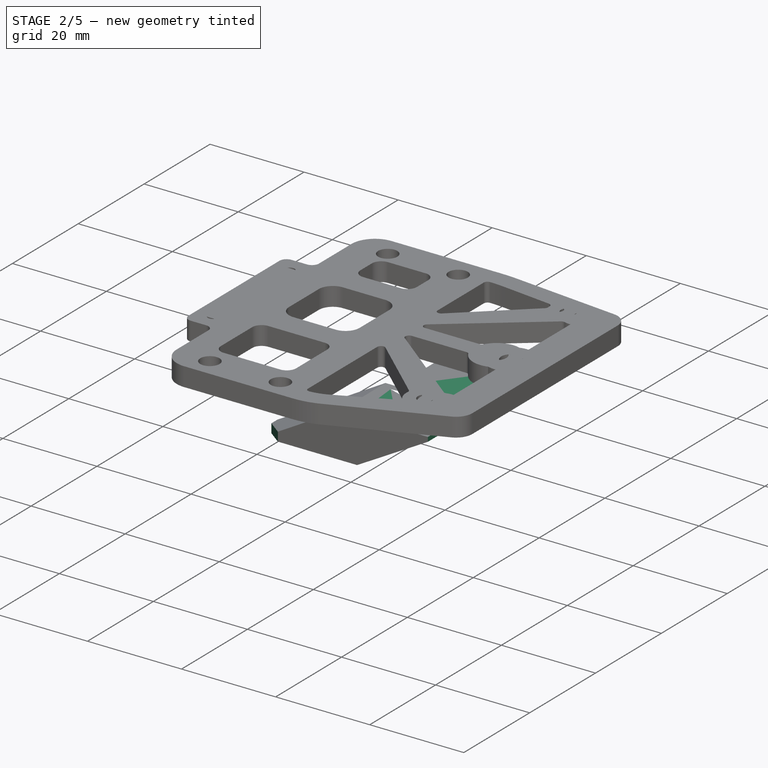
[diagram: stage 2 of 5 — iso view after this stage's code; geometry added in this stage tinted green]
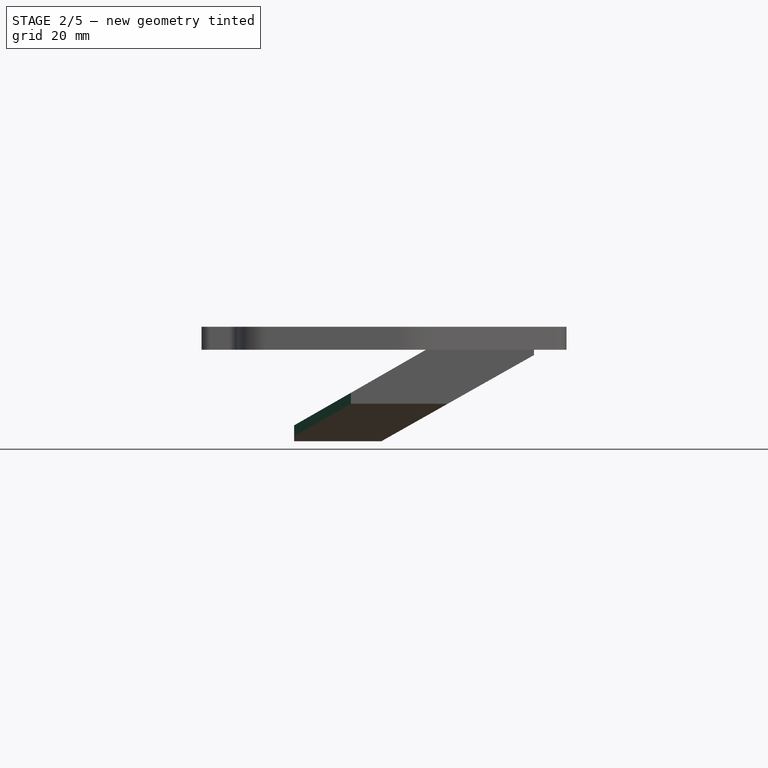
[diagram: stage 2 of 5 — front view after this stage's code; geometry added in this stage tinted green]
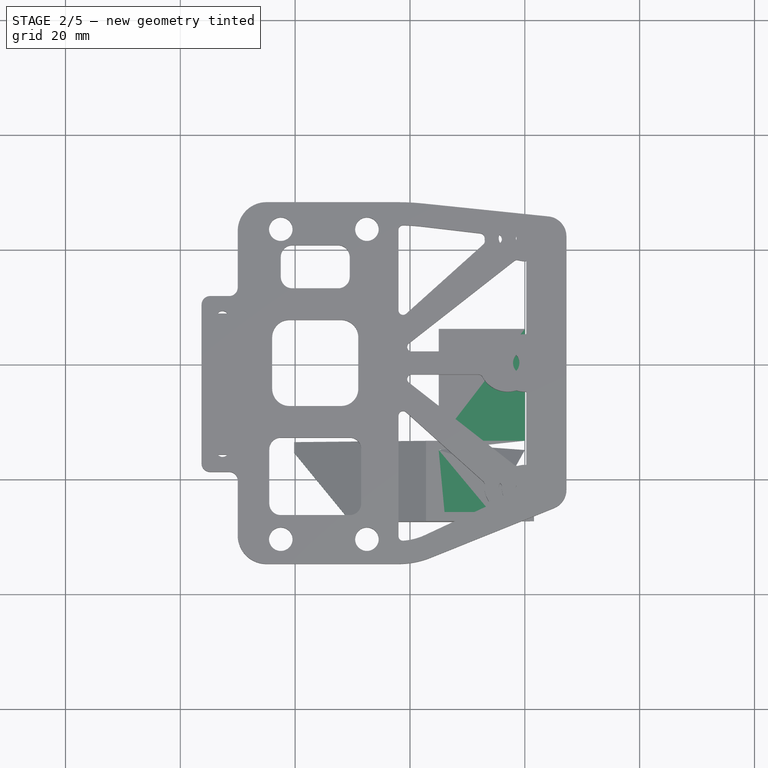
[diagram: stage 2 of 5 — top view after this stage's code; geometry added in this stage tinted green]
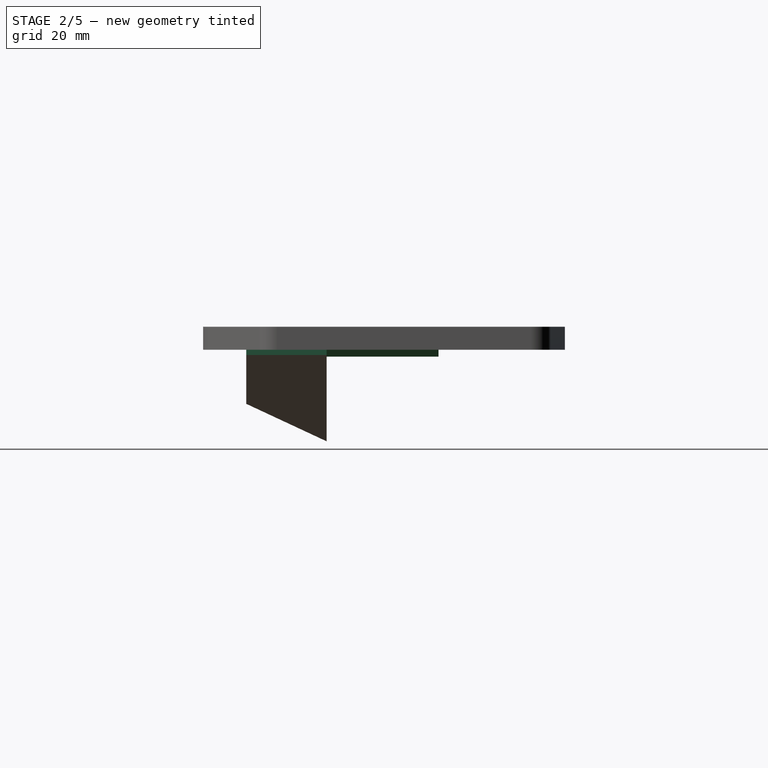
[diagram: stage 2 of 5 — right view after this stage's code; geometry added in this stage tinted green]
FEATURE [Sketcher::SketchObject] Sketch137
  ExternalGeometry = -> [Thickness001]
  FullyConstrained = true
  MapMode = 5
  Placement = pos=(-3e-15,-13.5,5.9e-15) rot=(0,0.707107,0.707107;3.14159rad)
  Support = -> [Thickness001]
  sketch-geometry (4):
    g0: LineSegment StartX=13.9849 StartY=-0.58241 StartZ=0 EndX=15 EndY=-0.58241 EndZ=0
    g1: LineSegment StartX=15 StartY=-0.58241 StartZ=0 EndX=15 EndY=-1.24e-14 EndZ=0
    g2: LineSegment StartX=15 StartY=-1.24e-14 StartZ=0 EndX=13.9849 EndY=-1.24e-14 EndZ=0
    g3: LineSegment StartX=13.9849 StartY=-1.24e-14 StartZ=0 EndX=13.9849 EndY=-0.58241 EndZ=0
  constraints (11):
    c: Coincident(g0,g1)
    c: Coincident(g1,g2)
    c: Coincident(g2,g3)
    c: Coincident(g3,g0)
    c: Horizontal(g0)
    c: Horizontal(g2)
    c: Vertical(g1)
    c: Vertical(g3)
    c: DistanceX(g-4,g1) = 15
    c: PointOnObject(g0,g-3)
    c: Coincident(g-3,g2)
FEATURE [PartDesign::Pocket] Pocket070
  BaseFeature = -> Thickness001
  Direction = (-2e-16,-1,2e-16)
  Length = 0
  Length2 = 5
  Profile = -> Sketch137
  ReferenceAxis = -> Sketch137 [N_Axis]
  Type = 3
  UpToFace = -> Thickness001 [Face10]
FEATURE [Sketcher::SketchObject] Sketch138
  ExternalGeometry = -> [Pocket070]
  FullyConstrained = true
  MapMode = 5
  Placement = pos=(-3e-15,-13.5,5.9e-15) rot=(0,0.707107,0.707107;3.14159rad)
  Support = -> [Pocket070]
  sketch-geometry (4):
    g0: LineSegment StartX=-3.25476 StartY=0 StartZ=0 EndX=-1.6 EndY=0 EndZ=0
    g1: LineSegment StartX=-1.6 StartY=0 StartZ=0 EndX=-1.6 EndY=-0.934121 EndZ=0
    g2: LineSegment StartX=-1.6 StartY=-0.934121 StartZ=0 EndX=-3.25476 EndY=-0.934121 EndZ=0
    g3: LineSegment StartX=-3.25476 StartY=-0.934121 StartZ=0 EndX=-3.25476 EndY=0 EndZ=0
  constraints (11):
    c: Coincident(g0,g1)
    c: Coincident(g1,g2)
    c: Coincident(g2,g3)
    c: Coincident(g3,g0)
    c: Horizontal(g0)
    c: Horizontal(g2)
    c: Vertical(g1)
    c: Vertical(g3)
    c: Coincident(g0,g-3)
    c: PointOnObject(g1,g-3)
    c: DistanceX(g0,g-1) = 1.6
FEATURE [PartDesign::Pocket] Pocket071
  BaseFeature = -> Pocket070
  Direction = (-2e-16,-1,2e-16)
  Length = 5
  Length2 = 5
  Profile = -> Sketch138
  ReferenceAxis = -> Sketch138 [N_Axis]
  Type = 1
FEATURE [Sketcher::SketchObject] Sketch139
  ExternalGeometry = -> [Pocket071]
  FullyConstrained = true
  MapMode = 5
  Placement = pos=(-3e-15,-13.5,5.9e-15) rot=(0,0.707107,0.707107;3.14159rad)
  Support = -> [Pocket071]
  sketch-geometry (5):
    g0: LineSegment StartX=1.71341e-07 StartY=-9.67168e-08 StartZ=0 EndX=21.5845 EndY=-12.1846 EndZ=0
    g1: LineSegment StartX=21.5845 StartY=-12.1846 StartZ=0 EndX=35.222 EndY=-12.1846 EndZ=0
    g2: LineSegment StartX=35.222 StartY=-12.1846 StartZ=0 EndX=15 EndY=-0.58241 EndZ=0
    g3: LineSegment StartX=15 StartY=-0.58241 StartZ=0 EndX=15 EndY=-1.24e-14 EndZ=0
    g4: LineSegment StartX=15 StartY=-1.24e-14 StartZ=0 EndX=1.71341e-07 EndY=-9.67168e-08 EndZ=0
  constraints (12):
    c: Coincident(g-5,g0)
    c: PointOnObject(g0,g-5)
    c: Coincident(g0,g1)
    c: PointOnObject(g1,g-3)
    c: Horizontal(g1)
    c: Coincident(g1,g2)
    c: Coincident(g2,g-4)
    c: Coincident(g2,g3)
    c: Coincident(g3,g-4)
    c: Coincident(g3,g4)
    c: Coincident(g4,g0)
    c: DistanceY(g-5,g0) = 2
FEATURE [PartDesign::Pad] Pad051
  BaseFeature = -> Pocket071
  Direction = (2e-16,1,-2e-16)
  Length = 1.6
  Length2 = 10
  Profile = -> Sketch139
  ReferenceAxis = -> Sketch139 [N_Axis]
  Reversed = true
  Type = 0
FEATURE [PartDesign::Fillet] Fillet002
  Base = -> Pad051 [Edge35]
  BaseFeature = -> Pad051
  Radius = 4
  SupportTransform = false
  UseAllEdges = false
FEATURE [PartDesign::Chamfer] Chamfer002
  Angle = 67.3
  Base = -> Fillet002 [Edge43]
  BaseFeature = -> Fillet002
  ChamferType = 2
  FlipDirection = false
  Size = 2.8
  Size2 = 1
  SupportTransform = false
  UseAllEdges = false
FEATURE [PartDesign::Chamfer] Chamfer003
  Angle = 90
  Base = -> Chamfer002 [Edge2]
  BaseFeature = -> Chamfer002
  ChamferType = 2
  FlipDirection = false
  Size = 1.5
  Size2 = 1
  SupportTransform = false
  UseAllEdges = false
FEATURE [PartDesign::Fillet] Fillet003
  Base = -> Chamfer003 [Edge56]
  BaseFeature = -> Chamfer003
  Radius = 1.5
  SupportTransform = false
  UseAllEdges = false
FEATURE [Sketcher::SketchObject] Sketch140
  ExternalGeometry = -> [Fillet003]
  FullyConstrained = true
  MapMode = 5
  Placement = pos=(-3.8e-15,-15.1,4.4e-15) rot=(1,0,0;1.5708rad)
  Support = -> [Fillet003]
  sketch-geometry (3):
    g0: LineSegment StartX=-15 StartY=-1.28e-14 StartZ=0 EndX=-15 EndY=-8.4676 EndZ=0
    g1: LineSegment StartX=-15 StartY=-8.4676 StartZ=0 EndX=-1.71341e-07 EndY=-9.67168e-08 EndZ=0
    g2: LineSegment StartX=-1.71341e-07 StartY=-9.67168e-08 StartZ=0 EndX=-15 EndY=-1.28e-14 EndZ=0
  constraints (7):
    c: Coincident(g-3,g0)
    c: PointOnObject(g0,g-4)
    c: Vertical(g0)
    c: Coincident(g0,g1)
    c: Coincident(g1,g-4)
    c: Coincident(g1,g2)
    c: Coincident(g2,g0)
FEATURE [PartDesign::Pocket] Pocket072
  BaseFeature = -> Fillet003
  Direction = (3e-16,1,-2e-16)
  Length = 5
  Length2 = 5
  Profile = -> Sketch140
  ReferenceAxis = -> Sketch140 [N_Axis]
  Type = 1
FEATURE [PartDesign::Body] Body016  label="风扇安装座"
  Group = -> [Sketch116,Pad043,Sketch117,Pocket057,Sketch118,Pocket058,Sketch119,Pocket059,Sketch146,Pad057,Mirrored]
  Origin = -> Origin020
  Tip = -> Mirrored
FEATURE [Sketcher::SketchObject] Sketch143
  ExternalGeometry = -> [Pocket072]
  FullyConstrained = true
  MapMode = 2
  Support = -> [Pocket072]
  sketch-geometry (3):
    g0: ArcOfCircle CenterX=-6 CenterY=-19.9 CenterZ=0 NormalX=0 NormalY=0 NormalZ=1 AngleXU=0 Radius=6 StartAngle=4.71239 EndAngle=6.28319
    g1: LineSegment StartX=-1.42e-14 StartY=-19.9 StartZ=0 EndX=-1.42e-14 EndY=-25.9 EndZ=0
    g2: LineSegment StartX=-1.42e-14 StartY=-25.9 StartZ=0 EndX=-6 EndY=-25.9 EndZ=0
  constraints (7):
    c: Coincident(g1,g2)
    c: Horizontal(g2)
    c: Vertical(g1)
    c: Diameter(g0) = 12
    c: Coincident(g1,g-4)
    c: Tangent(g0,g1) = 1.5708
    c: Tangent(g2,g0) = 1.5708
FEATURE [PartDesign::Pad] Pad054
  BaseFeature = -> Pocket072
  Direction = (0,0,1)
  Length = 10
  Length2 = 10
  Profile = -> Sketch143
  ReferenceAxis = -> Sketch143 [N_Axis]
  Reversed = true
  Type = 3
  UpToFace = -> Pocket072 [Face11]
FEATURE [Sketcher::SketchObject] Sketch144
  FullyConstrained = false
  MapMode = 5
  Placement = pos=(0,-25.9,-5.7e-15) rot=(0,0.707107,0.707107;3.14159rad)
  Support = -> [Pad054]
  sketch-geometry (4):
    g0: LineSegment StartX=15 StartY=-3.8e-15 StartZ=0 EndX=15 EndY=-1.2 EndZ=0
    g1: LineSegment StartX=15 StartY=-1.2 StartZ=0 EndX=2.3703 EndY=-1.2 EndZ=0
    g2: LineSegment StartX=2.3703 StartY=-1.2 StartZ=0 EndX=1.92127e-07 EndY=-9.72672e-08 EndZ=0
    g3: LineSegment StartX=1.92127e-07 StartY=-9.72672e-08 StartZ=0 EndX=15 EndY=-3.8e-15 EndZ=0
  constraints (6):
    c: Coincident(g0,g1)
    c: Horizontal(g1)
    c: Coincident(g1,g2)
    c: Coincident(g2,g3)
    c: Coincident(g3,g0)
    c: DistanceY(g0,g0) = 1.2
FEATURE [PartDesign::Pad] Pad055
  BaseFeature = -> Pad054
  Direction = (0,1,2e-16)
  Length = 31.9
  Length2 = 10
  Profile = -> Sketch144
  ReferenceAxis = -> Sketch144 [N_Axis]
  Type = 0
FEATURE [Sketcher::SketchObject] Sketch145
  ExternalGeometry = -> [Pad055]
  FullyConstrained = true
  MapMode = 5
  Placement = pos=(-15,3.8e-15,0) rot=(0.57735,0.57735,0.57735;2.0944rad)
  Support = -> [Pad055]
  sketch-geometry (4):
    g0: LineSegment StartX=-15.1 StartY=-1.2 StartZ=0 EndX=-13.9 EndY=-1.2 EndZ=0
    g1: LineSegment StartX=-13.9 StartY=-1.2 StartZ=0 EndX=-13.9 EndY=-8.4676 EndZ=0
    g2: LineSegment StartX=-13.9 StartY=-8.4676 StartZ=0 EndX=-15.1 EndY=-8.4676 EndZ=0
    g3: LineSegment StartX=-15.1 StartY=-8.4676 StartZ=0 EndX=-15.1 EndY=-1.2 EndZ=0
  constraints (10):
    c: Coincident(g0,g1)
    c: Coincident(g1,g2)
    c: Coincident(g2,g3)
    c: Coincident(g3,g0)
    c: Horizontal(g0)
    c: Horizontal(g2)
    c: Vertical(g1)
    c: Coincident(g0,g-3)
    c: Coincident(g2,g-3)
    c: DistanceX(g0,g0) = 1.2
FEATURE [PartDesign::Pad] Pad056  label="优化搭桥"
  BaseFeature = -> Pad055
  Direction = (1,-1e-16,-1e-16)
  Length = 0.4
  Length2 = 10
  Offset = -6
  Profile = -> Sketch145
  ReferenceAxis = -> Sketch145 [N_Axis]
  Type = 0
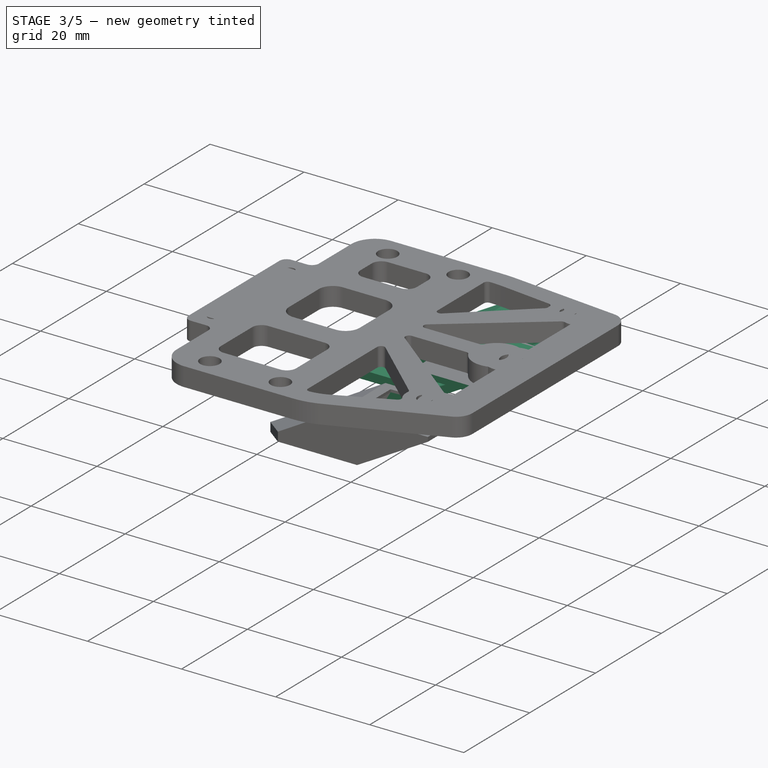
[diagram: stage 3 of 5 — iso view after this stage's code; geometry added in this stage tinted green]
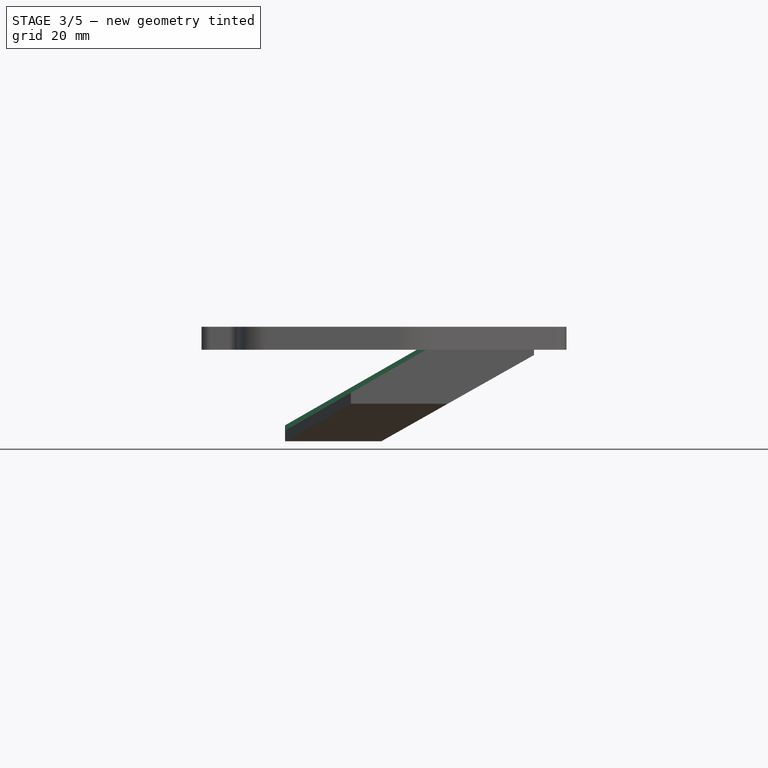
[diagram: stage 3 of 5 — front view after this stage's code; geometry added in this stage tinted green]
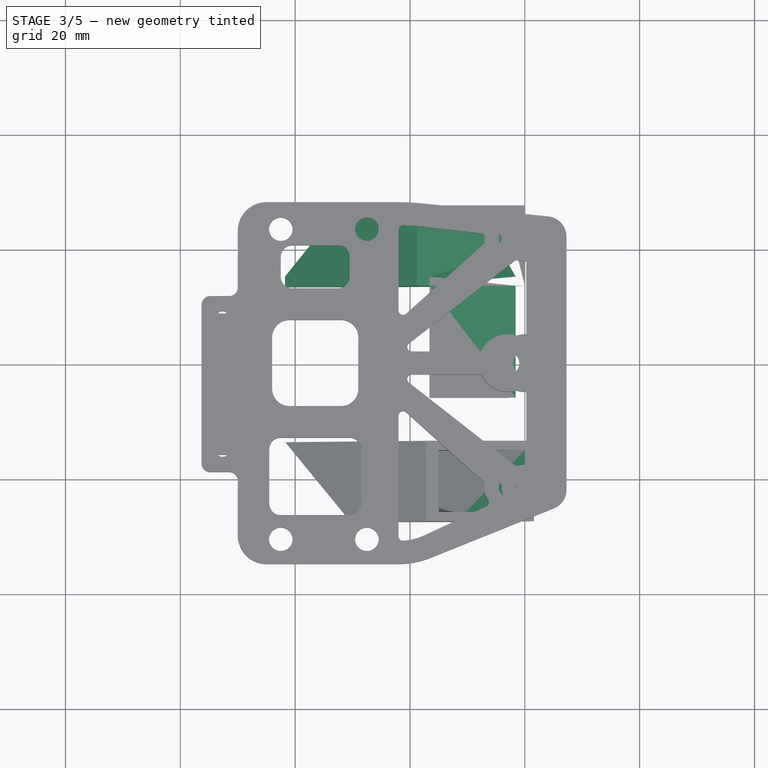
[diagram: stage 3 of 5 — top view after this stage's code; geometry added in this stage tinted green]
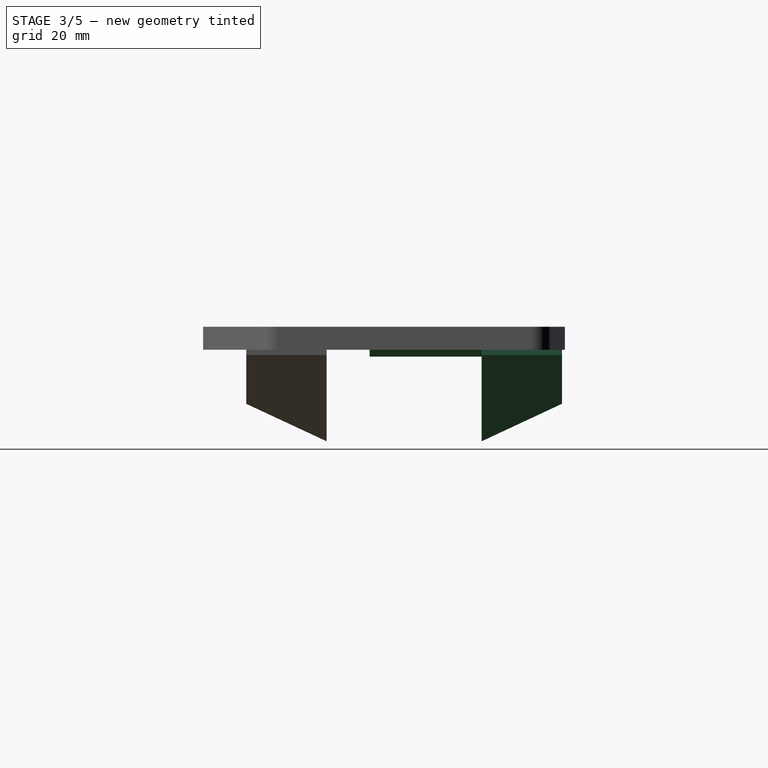
[diagram: stage 3 of 5 — right view after this stage's code; geometry added in this stage tinted green]
FEATURE [Sketcher::SketchObject] Sketch128
  FullyConstrained = true
  MapMode = 5
  Placement = pos=(0,0,0) rot=(1,0,0;1.5708rad)
  Support = -> [XZ_Plane023]
  sketch-geometry (8):
    g0: LineSegment StartX=-25 StartY=-15.95 StartZ=0 EndX=-45 EndY=-15.95 EndZ=0
    g1: LineSegment StartX=-45 StartY=-15.95 StartZ=0 EndX=-17.2 EndY=0 EndZ=0
    g2: LineSegment StartX=3.25476 StartY=0 StartZ=0 EndX=-17.2 EndY=0 EndZ=0
    g3: GeomPoint X=-15.6 Y=0 Z=0
    g4: LineSegment StartX=-25 StartY=-15.95 StartZ=0 EndX=-25 EndY=-17.25 EndZ=0
    g5: GeomPoint X=-1.6 Y=0 Z=0
    g6: LineSegment StartX=0 StartY=0 StartZ=0 EndX=0.786541 EndY=-1.39332 EndZ=0
    g7: LineSegment StartX=3.25476 StartY=0 StartZ=0 EndX=-25 EndY=-15.95 EndZ=0
  constraints (22):
    c: PointOnObject(g2,g-1)
    c: Horizontal(g0)
    c: Coincident(g0,g1)
    c: Coincident(g2,g1)
    c: Horizontal(g2)
    c: DistanceX(g0,g0) = 20
    c: PointOnObject(g3,g2)
    c: DistanceX(g1,g3) = 1.6
    c: Vertical(g4)
    c: Distance(g4) = 1.3
    c: PointOnObject(g5,g2)
    c: DistanceX(g5,g-1) = 1.6
    c: DistanceX(g3,g5) = 14
    c: DistanceX(g0,g-1) = 25
    c: Coincident(g6,g-1)
    c: Coincident(g7,g2)
    c: Coincident(g7,g0)
    c: PointOnObject(g6,g7)
    c: Distance(g6) = 1.6
    c: DistanceY(g4,g6) = 17.25
    c: Coincident(g0,g4)
    c: Perpendicular(g6,g7)
FEATURE [PartDesign::Pad] Pad047
  Direction = (0,-1,-2e-16)
  Length = 27.5
  Length2 = 10
  Placement = pos=(0,0,0) rot=(1,0,0;1.5708rad)
  Profile = -> Sketch128
  ReferenceAxis = -> Sketch128 [N_Axis]
  Type = 0
FEATURE [Sketcher::SketchObject] Sketch129
  ExternalGeometry = -> [Pad047]
  FullyConstrained = true
  MapMode = 5
  Placement = pos=(0,0,0) rot=(0.57735,0.57735,0.57735;2.0944rad)
  Support = -> [YZ_Plane023]
  sketch-geometry (11):
    g0: LineSegment StartX=-27.5 StartY=-9.42169 StartZ=0 EndX=-13.5 EndY=-15.95 EndZ=0
    g1: LineSegment StartX=-13.5 StartY=-15.95 StartZ=0 EndX=-13.5 EndY=0 EndZ=0
    g2: LineSegment StartX=-13.5 StartY=0 StartZ=0 EndX=0 EndY=0 EndZ=0
    g3: LineSegment StartX=0 StartY=0 StartZ=0 EndX=-4.9e-15 EndY=-15.95 EndZ=0
    g4: LineSegment StartX=-4.9e-15 StartY=-15.95 StartZ=0 EndX=0 EndY=-16.6571 EndZ=0
    g5: LineSegment StartX=0 StartY=-16.6571 StartZ=0 EndX=-28.2071 EndY=-16.6571 EndZ=0
    g6: LineSegment StartX=-28.2071 StartY=-16.6571 StartZ=0 EndX=-28.2071 EndY=0 EndZ=0
    g7: LineSegment StartX=-28.2071 StartY=0 StartZ=0 EndX=-27.5 EndY=-1.46e-14 EndZ=0
    g8: LineSegment StartX=-27.5 StartY=-1.46e-14 StartZ=0 EndX=-27.5 EndY=-9.42169 EndZ=0
    g9: LineSegment StartX=-27.5 StartY=-15.95 StartZ=0 EndX=-27.5 EndY=-16.6571 EndZ=0
    g10: LineSegment StartX=-27.5 StartY=-15.95 StartZ=0 EndX=-28.2071 EndY=-15.95 EndZ=0
  constraints (31):
    c: PointOnObject(g0,g-3)
    c: PointOnObject(g0,g-4)
    c: Coincident(g0,g1)
    c: PointOnObject(g1,g-1)
    c: Vertical(g1)
    c: Coincident(g1,g2)
    c: Coincident(g2,g-1)
    c: Coincident(g2,g3)
    c: Coincident(g3,g-4)
    c: Coincident(g3,g4)
    c: PointOnObject(g4,g-2)
    c: Coincident(g4,g5)
    c: Horizontal(g5)
    c: Coincident(g5,g6)
    c: PointOnObject(g6,g-1)
    c: Vertical(g6)
    c: Coincident(g6,g7)
    c: Coincident(g7,g-3)
    c: Coincident(g7,g8)
    c: Coincident(g8,g0)
    c: Angle(g0,g8) = 2.00713
    c: Angle(g0,g-4) = 0.436332
    c: DistanceX(g7,g1) = 14
    c: Coincident(g9,g-4)
    c: PointOnObject(g9,g5)
    c: Vertical(g9)
    c: Coincident(g10,g9)
    c: PointOnObject(g10,g6)
    c: Horizontal(g10)
    c: Equal(g10,g9)
    c: Distance(g9,g5) = 1
FEATURE [PartDesign::Pocket] Pocket065
  BaseFeature = -> Pad047
  Direction = (-1,2e-16,-3e-16)
  Length = 50
  Length2 = 20
  Placement = pos=(0,0,0) rot=(1,0,0;1.5708rad)
  Profile = -> Sketch129
  ReferenceAxis = -> Sketch129 [N_Axis]
  Type = 4
FEATURE [PartDesign::Thickness] Thickness
  Base = -> Pocket065 [Face3,Face6]
  BaseFeature = -> Pocket065
  Intersection = false
  Join = 1
  Mode = 2
  Reversed = true
  SupportTransform = false
  Value = 1.6
FEATURE [Sketcher::SketchObject] Sketch130
  ExternalGeometry = -> [Thickness]
  FullyConstrained = true
  MapMode = 5
  Placement = pos=(-3e-15,-13.5,5.9e-15) rot=(0,0.707107,0.707107;3.14159rad)
  Support = -> [Thickness]
  sketch-geometry (4):
    g0: LineSegment StartX=13.9849 StartY=-0.58241 StartZ=0 EndX=15 EndY=-0.58241 EndZ=0
    g1: LineSegment StartX=15 StartY=-0.58241 StartZ=0 EndX=15 EndY=-1.24e-14 EndZ=0
    g2: LineSegment StartX=15 StartY=-1.24e-14 StartZ=0 EndX=13.9849 EndY=-1.24e-14 EndZ=0
    g3: LineSegment StartX=13.9849 StartY=-1.24e-14 StartZ=0 EndX=13.9849 EndY=-0.58241 EndZ=0
  constraints (11):
    c: Coincident(g0,g1)
    c: Coincident(g1,g2)
    c: Coincident(g2,g3)
    c: Coincident(g3,g0)
    c: Horizontal(g0)
    c: Horizontal(g2)
    c: Vertical(g1)
    c: Vertical(g3)
    c: DistanceX(g-4,g1) = 15
    c: PointOnObject(g0,g-3)
    c: Coincident(g-3,g2)
FEATURE [PartDesign::Pocket] Pocket066
  BaseFeature = -> Thickness
  Direction = (-2e-16,-1,2e-16)
  Length = 0
  Length2 = 5
  Profile = -> Sketch130
  ReferenceAxis = -> Sketch130 [N_Axis]
  Type = 3
  UpToFace = -> Thickness [Face10]
FEATURE [Sketcher::SketchObject] Sketch131
  ExternalGeometry = -> [Pocket066]
  FullyConstrained = true
  MapMode = 5
  Placement = pos=(-3e-15,-13.5,5.9e-15) rot=(0,0.707107,0.707107;3.14159rad)
  Support = -> [Pocket066]
  sketch-geometry (4):
    g0: LineSegment StartX=-3.25476 StartY=0 StartZ=0 EndX=-1.6 EndY=0 EndZ=0
    g1: LineSegment StartX=-1.6 StartY=0 StartZ=0 EndX=-1.6 EndY=-0.934121 EndZ=0
    g2: LineSegment StartX=-1.6 StartY=-0.934121 StartZ=0 EndX=-3.25476 EndY=-0.934121 EndZ=0
    g3: LineSegment StartX=-3.25476 StartY=-0.934121 StartZ=0 EndX=-3.25476 EndY=0 EndZ=0
  constraints (11):
    c: Coincident(g0,g1)
    c: Coincident(g1,g2)
    c: Coincident(g2,g3)
    c: Coincident(g3,g0)
    c: Horizontal(g0)
    c: Horizontal(g2)
    c: Vertical(g1)
    c: Vertical(g3)
    c: Coincident(g0,g-3)
    c: PointOnObject(g1,g-3)
    c: DistanceX(g0,g-1) = 1.6
FEATURE [PartDesign::Pocket] Pocket067
  BaseFeature = -> Pocket066
  Direction = (-2e-16,-1,2e-16)
  Length = 5
  Length2 = 5
  Profile = -> Sketch131
  ReferenceAxis = -> Sketch131 [N_Axis]
  Type = 1
FEATURE [Sketcher::SketchObject] Sketch132
  ExternalGeometry = -> [Pocket067]
  FullyConstrained = true
  MapMode = 5
  Placement = pos=(-3e-15,-13.5,5.9e-15) rot=(0,0.707107,0.707107;3.14159rad)
  Support = -> [Pocket067]
  sketch-geometry (5):
    g0: LineSegment StartX=-1.28e-14 StartY=-1.7e-15 StartZ=0 EndX=21.5845 EndY=-12.1846 EndZ=0
    g1: LineSegment StartX=21.5845 StartY=-12.1846 StartZ=0 EndX=35.222 EndY=-12.1846 EndZ=0
    g2: LineSegment StartX=35.222 StartY=-12.1846 StartZ=0 EndX=15 EndY=-0.58241 EndZ=0
    g3: LineSegment StartX=15 StartY=-0.58241 StartZ=0 EndX=15 EndY=-1.24e-14 EndZ=0
    g4: LineSegment StartX=15 StartY=-1.24e-14 StartZ=0 EndX=-1.24e-14 EndY=-1.7e-15 EndZ=0
  constraints (12):
    c: Coincident(g-5,g0)
    c: PointOnObject(g0,g-5)
    c: Coincident(g0,g1)
    c: PointOnObject(g1,g-3)
    c: Horizontal(g1)
    c: Coincident(g1,g2)
    c: Coincident(g2,g-4)
    c: Coincident(g2,g3)
    c: Coincident(g3,g-4)
    c: Coincident(g3,g4)
    c: Coincident(g4,g0)
    c: DistanceY(g-5,g0) = 2
FEATURE [PartDesign::Pad] Pad048
  BaseFeature = -> Pocket067
  Direction = (2e-16,1,-2e-16)
  Length = 1.6
  Length2 = 10
  Profile = -> Sketch132
  ReferenceAxis = -> Sketch132 [N_Axis]
  Reversed = true
  Type = 0
FEATURE [PartDesign::Fillet] Fillet
  Base = -> Pad048 [Edge35]
  BaseFeature = -> Pad048
  Radius = 4
  SupportTransform = false
  UseAllEdges = false
FEATURE [PartDesign::Chamfer] Chamfer
  Angle = 67.3
  Base = -> Fillet [Edge43]
  BaseFeature = -> Fillet
  ChamferType = 2
  FlipDirection = false
  Size = 2.8
  Size2 = 1
  SupportTransform = false
  UseAllEdges = false
FEATURE [Sketcher::SketchObject] Sketch147
  ExternalGeometry = -> [Pad055]
  FullyConstrained = true
  MapMode = 5
  Placement = pos=(0,-25.9,-5.7e-15) rot=(0,0.707107,0.707107;3.14159rad)
  Support = -> [Pad055]
  sketch-geometry (3):
    g0: LineSegment StartX=15 StartY=-1.2 StartZ=0 EndX=16.0764 EndY=-1.2 EndZ=0
    g1: LineSegment StartX=16.0764 StartY=-1.2 StartZ=0 EndX=15 EndY=-0.58241 EndZ=0
    g2: LineSegment StartX=15 StartY=-0.58241 StartZ=0 EndX=15 EndY=-1.2 EndZ=0
  constraints (7):
    c: Coincident(g-4,g0)
    c: PointOnObject(g0,g-3)
    c: Horizontal(g0)
    c: Coincident(g0,g1)
    c: Coincident(g1,g-4)
    c: Coincident(g1,g2)
    c: Coincident(g2,g0)
FEATURE [PartDesign::Pad] Pad058
  BaseFeature = -> Pad056
  Direction = (0,1,2e-16)
  Length = 10
  Length2 = 10
  Profile = -> Sketch147
  ReferenceAxis = -> Sketch147 [N_Axis]
  Type = 3
  UpToFace = -> Pad056 [Face2]
FEATURE [PartDesign::Body] Body019  label="右"
  Group = -> [Sketch135,Pad050,Sketch136,Pocket069,Thickness001,Sketch137,Pocket070,Sketch138,Pocket071,Sketch139,Pad051,Fillet002,Chamfer002,Chamfer003,Fillet003,Sketch140,Pocket072,Sketch143,Pad054,Sketch144,Pad055,Sketch145,Pad056,Sketch147,Pad058]
  Origin = -> Origin024
  Placement = pos=(-1.6,0,0) rot=(0,0,1;0rad)
  Tip = -> Pad058
  expr: .Placement.Base.x = -1.6
FEATURE [Part::Mirroring] Part__Mirroring  label="右 (Mirror #1)"
  Base = (-19.3152,-4.76837e-07,-7.225)
  Normal = (0,1,-1.19209e-07)
  Source = -> Body019
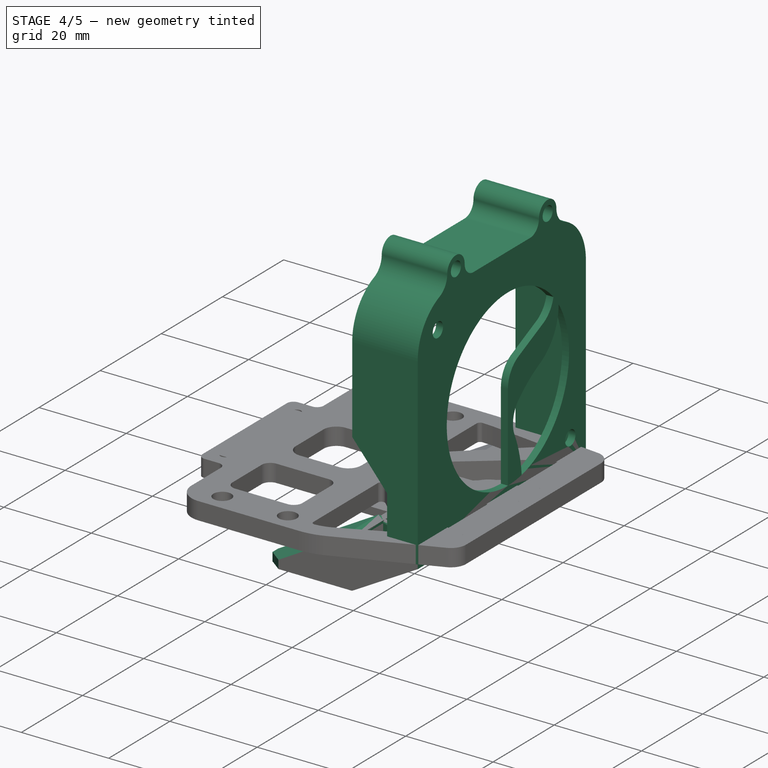
[diagram: stage 4 of 5 — iso view after this stage's code; geometry added in this stage tinted green]
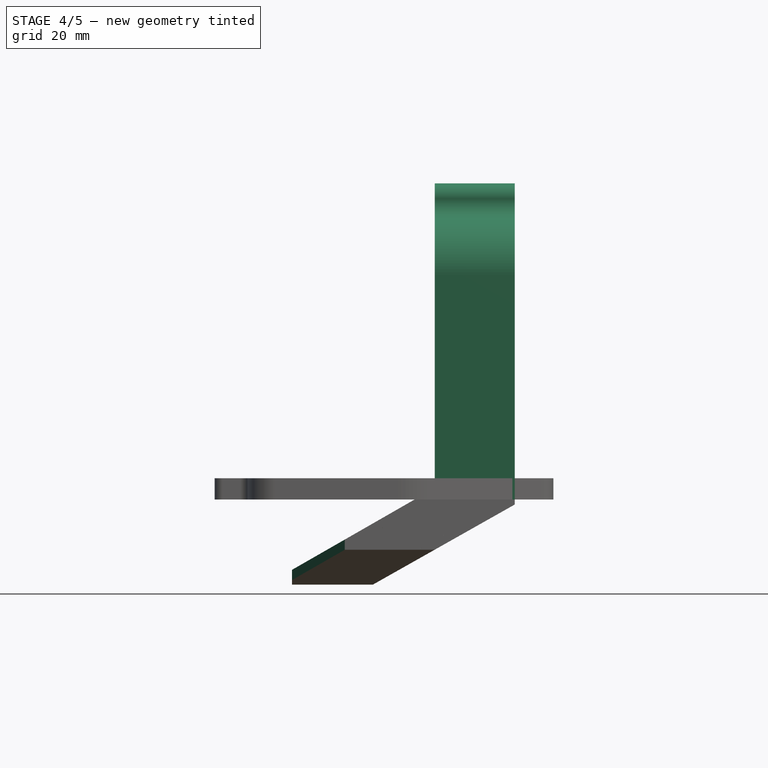
[diagram: stage 4 of 5 — front view after this stage's code; geometry added in this stage tinted green]
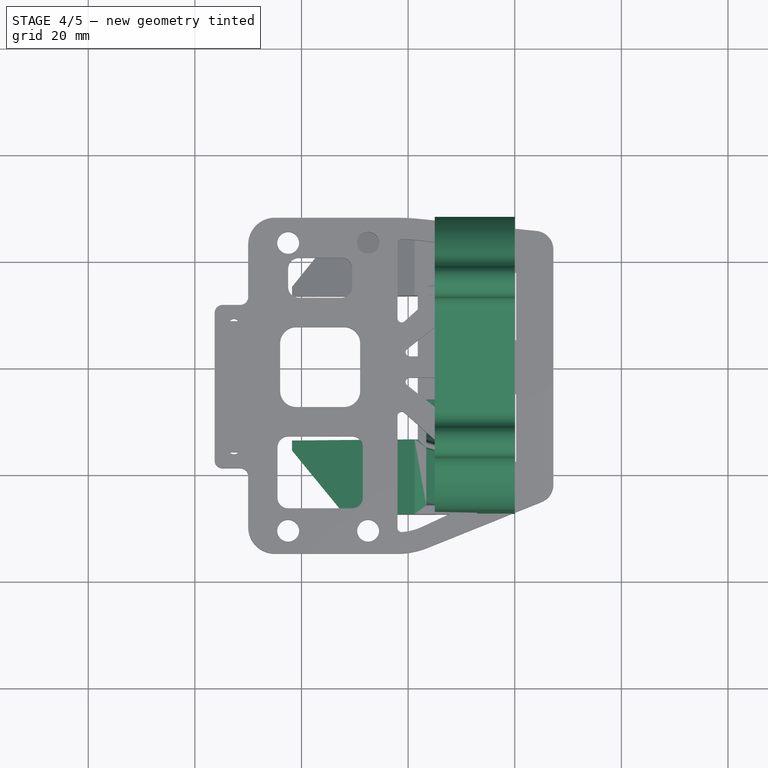
[diagram: stage 4 of 5 — top view after this stage's code; geometry added in this stage tinted green]
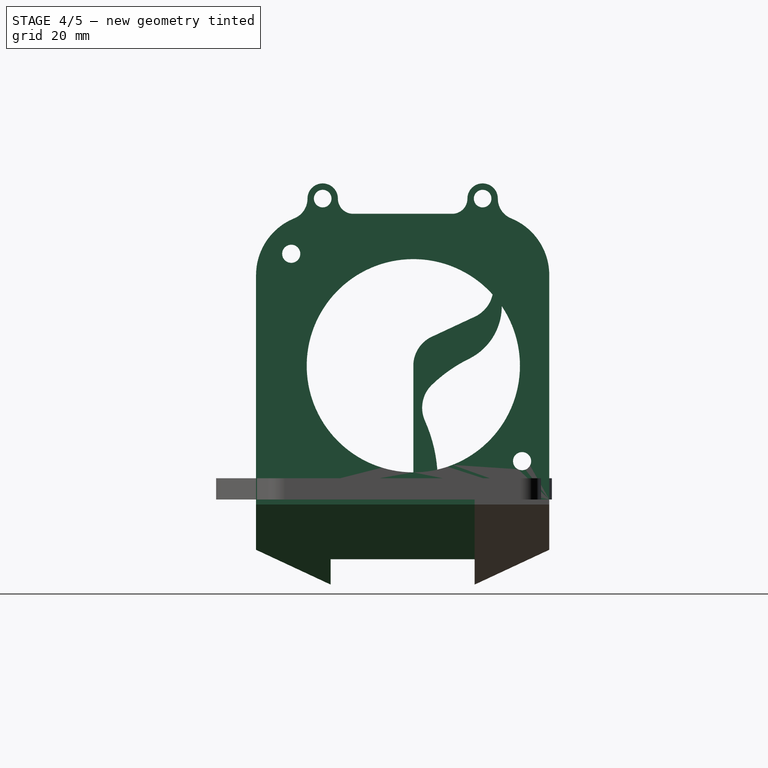
[diagram: stage 4 of 5 — right view after this stage's code; geometry added in this stage tinted green]
FEATURE [PartDesign::Body] Body  label="5015风扇"
  Group = -> [Sketch021,Pad]
  Origin = -> Origin
  Placement = pos=(14,0,0) rot=(0,0,1;0rad)
  Tip = -> Pad
FEATURE [Sketcher::SketchObject] Sketch116
  FullyConstrained = true
  MapMode = 5
  Placement = pos=(0,0,0) rot=(0.57735,0.57735,0.57735;2.0944rad)
  Support = -> [YZ_Plane020]
  sketch-geometry (14):
    g0: Circle CenterX=15 CenterY=56.45 CenterZ=0 NormalX=0 NormalY=0 NormalZ=1 AngleXU=0 Radius=1.65
    g1: Circle CenterX=-15 CenterY=56.45 CenterZ=0 NormalX=0 NormalY=0 NormalZ=1 AngleXU=0 Radius=1.65
    g2: LineSegment StartX=27.5 StartY=42.0963 StartZ=0 EndX=27.5 EndY=0 EndZ=0
    g3: LineSegment StartX=27.5 StartY=0 StartZ=0 EndX=-27.5 EndY=0 EndZ=0
    g4: LineSegment StartX=-27.5 StartY=0 StartZ=0 EndX=-27.5 EndY=42.0963 EndZ=0
    g5: ArcOfCircle CenterX=-16 CenterY=42.0963 CenterZ=0 NormalX=0 NormalY=0 NormalZ=1 AngleXU=0 Radius=11.5 StartAngle=1.9578 EndAngle=3.14159
    g6: ArcOfCircle CenterX=16 CenterY=42.0963 CenterZ=0 NormalX=0 NormalY=0 NormalZ=1 AngleXU=0 Radius=11.5 StartAngle=4e-16 EndAngle=1.18379
    g7: ArcOfCircle CenterX=-15 CenterY=56.45 CenterZ=0 NormalX=0 NormalY=0 NormalZ=1 AngleXU=0 Radius=2.85 StartAngle=1.1e-15 EndAngle=3.14159
    g8: ArcOfCircle CenterX=15 CenterY=56.45 CenterZ=0 NormalX=0 NormalY=0 NormalZ=1 AngleXU=0 Radius=2.85 StartAngle=0 EndAngle=3.14159
    g9: ArcOfCircle CenterX=9.3 CenterY=56.45 CenterZ=0 NormalX=0 NormalY=0 NormalZ=1 AngleXU=0 Radius=2.85 StartAngle=4.71239 EndAngle=6.28319
    g10: ArcOfCircle CenterX=21.85 CenterY=56.45 CenterZ=0 NormalX=0 NormalY=0 NormalZ=1 AngleXU=0 Radius=4 StartAngle=3.14159 EndAngle=4.32538
    g11: ArcOfCircle CenterX=-9.3 CenterY=56.45 CenterZ=0 NormalX=0 NormalY=0 NormalZ=1 AngleXU=0 Radius=2.85 StartAngle=3.14159 EndAngle=4.71239
    g12: ArcOfCircle CenterX=-21.85 CenterY=56.45 CenterZ=0 NormalX=0 NormalY=0 NormalZ=1 AngleXU=0 Radius=4 StartAngle=5.0994 EndAngle=6.28319
    g13: LineSegment StartX=-9.3 StartY=53.6 StartZ=0 EndX=9.3 EndY=53.6 EndZ=0
  constraints (36):
    c: Symmetric(g1,g0,g-2)
    c: Diameter(g0) = 3.3
    c: DistanceX(g0) = 15
    c: Equal(g1,g0)
    c: Coincident(g3,g4)
    c: Vertical(g2)
    c: Vertical(g4)
    c: Coincident(g2,g3)
    c: Equal(g6,g5)
    c: Tangent(g6,g2) = 1.5708
    c: Tangent(g5,g4) = 1.5708
    c: Symmetric(g2,g3,g-2)
    c: Distance(g3) = 55
    c: Radius(g6) = 11.5
    c: Coincident(g7,g1)
    c: Coincident(g8,g0)
    c: Equal(g8,g7)
    c: Horizontal(g9,g8)
    c: Horizontal(g11,g7)
    c: Horizontal(g12,g7)
    c: Tangent(g13,g11) = -1.5708
    c: Tangent(g5,g12) = 1.5708
    c: Tangent(g6,g10) = 1.5708
    c: Diameter(g10) = 8
    c: Diameter(g9) = 5.7
    c: Tangent(g9,g13) = -1.5708
    c: Tangent(g8,g9) = 1.5708
    c: Tangent(g8,g10) = 1.5708
    c: Diameter(g11) = 5.7
    c: Equal(g12,g10)
    c: Tangent(g7,g12) = 1.5708
    c: Tangent(g7,g11) = 1.5708
    c: Diameter(g8) = 5.7
    c: Horizontal(g8,g8)
    c: DistanceY(g2,g9) = 53.6
    c: PointOnObject(g-1,g3)
FEATURE [PartDesign::Pad] Pad043
  Direction = (1,-2e-16,3e-16)
  Length = 15
  Length2 = 10
  Placement = pos=(0,0,0) rot=(0.57735,0.57735,0.57735;2.0944rad)
  Profile = -> Sketch116
  ReferenceAxis = -> Sketch116 [N_Axis]
  Reversed = true
  Type = 0
FEATURE [Sketcher::SketchObject] Sketch117
  AttachmentOffset = pos=(0,0,0) rot=(0,0,1;3.14159rad)
  ExternalGeometry = -> [Pad043]
  FullyConstrained = true
  MapMode = 5
  Placement = pos=(-15,3.3e-15,-3.3e-15) rot=(0.57735,-0.57735,-0.57735;2.0944rad)
  Support = -> [Pad043]
  sketch-geometry (9):
    g0: LineSegment StartX=-25.9 StartY=42.0963 StartZ=0 EndX=-25.9 EndY=1.42e-14 EndZ=0
    g1: LineSegment StartX=-25.9 StartY=1.5e-14 StartZ=0 EndX=25.9 EndY=1.5e-14 EndZ=0
    g2: LineSegment StartX=25.9 StartY=1.5e-14 StartZ=0 EndX=25.9 EndY=42.0963 EndZ=0
    g3: LineSegment StartX=-15.9963 StartY=52 StartZ=0 EndX=15.9963 EndY=52 EndZ=0
    g4: ArcOfCircle CenterX=-15.9963 CenterY=42.0963 CenterZ=0 NormalX=0 NormalY=0 NormalZ=1 AngleXU=0 Radius=9.90366 StartAngle=1.5708 EndAngle=3.14159
    g5: ArcOfCircle CenterX=15.9963 CenterY=42.0963 CenterZ=0 NormalX=0 NormalY=0 NormalZ=1 AngleXU=0 Radius=9.90366 StartAngle=1e-16 EndAngle=1.5708
    g6: LineSegment StartX=9.3 StartY=53.6 StartZ=0 EndX=9.3 EndY=52 EndZ=0
    g7: LineSegment StartX=25.9 StartY=1.5e-14 StartZ=0 EndX=27.5 EndY=1.6e-14 EndZ=0
    g8: LineSegment StartX=-25.9 StartY=1.5e-14 StartZ=0 EndX=-27.5 EndY=-1.76e-14 EndZ=0
  constraints (23):
    c: Vertical(g0)
    c: Coincident(g0,g1)
    c: Horizontal(g1)
    c: Coincident(g1,g2)
    c: Vertical(g2)
    c: Tangent(g5,g3) = 1.5708
    c: Tangent(g5,g2) = -1.5708
    c: Tangent(g4,g3) = 1.5708
    c: Tangent(g4,g0) = -1.5708
    c: PointOnObject(g1,g-8)
    c: DistanceY(g3,g-5) = 1.6
    c: Horizontal(g3)
    c: Coincident(g6,g-5)
    c: PointOnObject(g6,g3)
    c: Coincident(g7,g1)
    c: Coincident(g7,g-8)
    c: Coincident(g8,g0)
    c: Coincident(g8,g-8)
    c: Equal(g6,g7)
    c: Equal(g7,g8)
    c: Vertical(g6)
    c: Horizontal(g-4,g2)
    c: Horizontal(g0,g-7)
FEATURE [PartDesign::Pocket] Pocket057
  BaseFeature = -> Pad043
  Direction = (1,-5e-16,5e-16)
  Length = 0
  Length2 = 5
  Offset = -1.6
  Placement = pos=(0,0,0) rot=(0.57735,0.57735,0.57735;2.0944rad)
  Profile = -> Sketch117
  ReferenceAxis = -> Sketch117 [N_Axis]
  Type = 3
  UpToFace = -> Pad043 [Face13]
FEATURE [Sketcher::SketchObject] Sketch118
  ExternalGeometry = -> [Pocket057]
  FullyConstrained = true
  MapMode = 5
  Placement = pos=(-1e-16,0,0) rot=(0.57735,0.57735,0.57735;2.0944rad)
  Support = -> [Pocket057]
  sketch-geometry (5):
    g0: Circle CenterX=-15 CenterY=56.45 CenterZ=0 NormalX=0 NormalY=0 NormalZ=1 AngleXU=0 Radius=1.65
    g1: Circle CenterX=15 CenterY=56.45 CenterZ=0 NormalX=0 NormalY=0 NormalZ=1 AngleXU=0 Radius=1.65
    g2: Circle CenterX=22.4 CenterY=7.2 CenterZ=0 NormalX=0 NormalY=0 NormalZ=1 AngleXU=0 Radius=1.7
    g3: Circle CenterX=-20.9 CenterY=46.1 CenterZ=0 NormalX=0 NormalY=0 NormalZ=1 AngleXU=0 Radius=1.7
    g4: Circle CenterX=2 CenterY=25.1 CenterZ=0 NormalX=0 NormalY=0 NormalZ=1 AngleXU=0 Radius=20
  constraints (13):
    c: Coincident(g0,g-4)
    c: Coincident(g1,g-3)
    c: Equal(g1,g0)
    c: Diameter(g1) = 3.3
    c: Diameter(g2) = 3.4
    c: DistanceX(g2,g-5) = 5.1
    c: DistanceY(g-5,g2) = 7.2
    c: DistanceY(g3,g-6) = 7.5
    c: Equal(g3,g2)
    c: DistanceX(g-7,g3) = 6.6
    c: DistanceX(g4,g-5) = 25.5
    c: DistanceY(g4,g-6) = 28.5
    c: Diameter(g4) = 40
FEATURE [PartDesign::Pocket] Pocket058
  BaseFeature = -> Pocket057
  Direction = (-1,9e-16,-6e-16)
  Length = 0
  Length2 = 5
  Placement = pos=(0,0,0) rot=(0.57735,0.57735,0.57735;2.0944rad)
  Profile = -> Sketch118
  ReferenceAxis = -> Sketch118 [N_Axis]
  Type = 3
  UpToFace = -> Pocket057 [Face5]
FEATURE [Sketcher::SketchObject] Sketch119
  AttachmentOffset = pos=(0,0,0) rot=(0,0,1;3.14159rad)
  ExternalGeometry = -> [Pocket058]
  FullyConstrained = true
  MapMode = 5
  Placement = pos=(-1.21e-14,-27.5,6.1e-15) rot=(-0.57735,0.57735,-0.57735;4.18879rad)
  Support = -> [Pocket058]
  sketch-geometry (4):
    g0: LineSegment StartX=-2.2e-15 StartY=15 StartZ=0 EndX=22.434 EndY=15 EndZ=0
    g1: LineSegment StartX=22.434 StartY=15 StartZ=0 EndX=12.9 EndY=7 EndZ=0
    g2: LineSegment StartX=12.9 StartY=7 StartZ=0 EndX=-1.8e-15 EndY=7 EndZ=0
    g3: LineSegment StartX=-2.2e-15 StartY=7 StartZ=0 EndX=-2.2e-15 EndY=15 EndZ=0
  constraints (11):
    c: Horizontal(g0)
    c: Coincident(g0,g1)
    c: Coincident(g1,g2)
    c: Horizontal(g2)
    c: Coincident(g2,g3)
    c: Coincident(g3,g0)
    c: Vertical(g3)
    c: Angle(g1,g2) = 2.44346
    c: Distance(g3) = 8
    c: Distance(g2) = 12.9
    c: Coincident(g0,g-3)
FEATURE [PartDesign::Pocket] Pocket059  label="风扇安装座002"
  BaseFeature = -> Pocket058
  Direction = (4e-16,1,-8e-16)
  Length = 5
  Length2 = 5
  Placement = pos=(0,0,0) rot=(0.57735,0.57735,0.57735;2.0944rad)
  Profile = -> Sketch119
  ReferenceAxis = -> Sketch119 [N_Axis]
  Type = 0
FEATURE [PartDesign::Chamfer] Chamfer001
  Angle = 90
  Base = -> Chamfer [Edge2]
  BaseFeature = -> Chamfer
  ChamferType = 2
  FlipDirection = false
  Size = 1.5
  Size2 = 1
  SupportTransform = false
  UseAllEdges = false
FEATURE [PartDesign::Fillet] Fillet001
  Base = -> Chamfer001 [Edge56]
  BaseFeature = -> Chamfer001
  Radius = 1.5
  SupportTransform = false
  UseAllEdges = false
FEATURE [Sketcher::SketchObject] Sketch133
  ExternalGeometry = -> [Fillet001]
  FullyConstrained = true
  MapMode = 5
  Placement = pos=(-3.8e-15,-15.1,4.4e-15) rot=(1,0,0;1.5708rad)
  Support = -> [Fillet001]
  sketch-geometry (3):
    g0: LineSegment StartX=-15 StartY=-1.28e-14 StartZ=0 EndX=-15 EndY=-8.4676 EndZ=0
    g1: LineSegment StartX=-15 StartY=-8.4676 StartZ=0 EndX=1.24e-14 EndY=-3.6e-15 EndZ=0
    g2: LineSegment StartX=1.24e-14 StartY=-3.6e-15 StartZ=0 EndX=-15 EndY=-1.28e-14 EndZ=0
  constraints (7):
    c: Coincident(g-3,g0)
    c: PointOnObject(g0,g-4)
    c: Vertical(g0)
    c: Coincident(g0,g1)
    c: Coincident(g1,g-4)
    c: Coincident(g1,g2)
    c: Coincident(g2,g0)
FEATURE [PartDesign::Pocket] Pocket068
  BaseFeature = -> Fillet001
  Direction = (3e-16,1,-2e-16)
  Length = 5
  Length2 = 5
  Profile = -> Sketch133
  ReferenceAxis = -> Sketch133 [N_Axis]
  Type = 1
FEATURE [Sketcher::SketchObject] Sketch146
  ExternalGeometry = -> [Pocket059]
  FullyConstrained = true
  MapMode = 5
  Placement = pos=(-1e-16,0,0) rot=(0.57735,0.57735,0.57735;2.0944rad)
  Support = -> [Pocket059]
  sketch-geometry (11):
    g0: ArcOfCircle CenterX=8 CenterY=25.1 CenterZ=0 NormalX=0 NormalY=0 NormalZ=1 AngleXU=0 Radius=6 StartAngle=2.00713 EndAngle=3.14159
    g1: ArcOfCircle CenterX=11.0114 CenterY=39.7448 CenterZ=0 NormalX=0 NormalY=0 NormalZ=1 AngleXU=0 Radius=6 StartAngle=5.14872 EndAngle=6.06906
    g2: LineSegment StartX=5.46429 StartY=30.5378 StartZ=0 EndX=13.5471 EndY=34.3069 EndZ=0
    g3: ArcOfCircle CenterX=2 CenterY=25.1 CenterZ=0 NormalX=0 NormalY=0 NormalZ=1 AngleXU=0 Radius=20 StartAngle=4.71239 EndAngle=4.93933
    g4: ArcOfCircle CenterX=-20.9209 CenterY=3.52811 CenterZ=0 NormalX=0 NormalY=0 NormalZ=1 AngleXU=0 Radius=27.5 StartAngle=0.0758806 EndAngle=0.420763
    g5: LineSegment StartX=2 StartY=25.1 StartZ=0 EndX=2 EndY=5.1 EndZ=0
    g6: ArcOfCircle CenterX=9.65718 CenterY=17.2114 CenterZ=0 NormalX=0 NormalY=0 NormalZ=1 AngleXU=0 Radius=6 StartAngle=2.33625 EndAngle=3.56236
    g7: ArcOfCircle CenterX=24.5537 CenterY=1.70843 CenterZ=0 NormalX=0 NormalY=0 NormalZ=1 AngleXU=0 Radius=27.5 StartAngle=2.02708 EndAngle=2.33625
    g8: ArcOfCircle CenterX=7.59021 CenterY=36.2698 CenterZ=0 NormalX=0 NormalY=0 NormalZ=1 AngleXU=0 Radius=11 StartAngle=5.16867 EndAngle=6.28319
    g9: ArcOfCircle CenterX=2 CenterY=25.1 CenterZ=0 NormalX=0 NormalY=0 NormalZ=1 AngleXU=0 Radius=20 StartAngle=0.592565 EndAngle=0.732178
    g10: LineSegment StartX=5.5 StartY=21.5378 StartZ=0 EndX=12.4369 EndY=26.3951 EndZ=0
  constraints (31):
    c: Coincident(g0,g-3)
    c: PointOnObject(g1,g-3)
    c: Coincident(g3,g0)
    c: PointOnObject(g3,g-3)
    c: Coincident(g3,g4)
    c: Coincident(g5,g3)
    c: Vertical(g5)
    c: Coincident(g9,g0)
    c: Coincident(g9,g1)
    c: Coincident(g9,g8)
    c: Tangent(g8,g7) = 1.5708
    c: Tangent(g7,g6) = -1.5708
    c: Tangent(g6,g4) = 1.5708
    c: Equal(g4,g7)
    c: Tangent(g2,g1) = -1.5708
    c: Tangent(g2,g0) = 1.5708
    c: Coincident(g10,g6)
    c: Coincident(g10,g7)
    c: Angle(g-4,g10) = 0.610865
    c: Equal(g1,g0)
    c: Equal(g0,g6)
    c: DistanceX(g3,g3) = 4.5
    c: Tangent(g5,g0) = -1.5708
    c: DistanceY(g6,g0) = 9
    c: Diameter(g4) = 55
    c: Radius(g0) = 6
    c: Radius(g8) = 11
    c: Horizontal(g8,g8)
    c: Angle(g-1,g2) = 0.436332
    c: DistanceY(g8,g1) = 2.2
    c: DistanceX(g6,g3) = 1
FEATURE [PartDesign::Pad] Pad057  label="鱼尾纹"
  BaseFeature = -> Pocket059
  Direction = (1,-2e-16,2e-16)
  Length = 1.6
  Length2 = 10
  Placement = pos=(0,0,0) rot=(0.57735,0.57735,0.57735;2.0944rad)
  Profile = -> Sketch146
  ReferenceAxis = -> Sketch146 [N_Axis]
  Reversed = true
  Type = 3
  UpToFace = -> Pocket059 [Face27]
FEATURE [PartDesign::Pad] Pad049
  BaseFeature = -> Pocket068
  Direction = (3e-16,1,-2e-16)
  Length = 27
  Length2 = 10
  Profile = -> Sketch134
  ReferenceAxis = -> Sketch134 [N_Axis]
  Type = 3
  UpToFace = -> Part__Mirroring [Face7]
FEATURE [Sketcher::SketchObject] Sketch142
  ExternalGeometry = -> [Pad049]
  FullyConstrained = true
  MapMode = 5
  Placement = pos=(-15,3.7e-15,0) rot=(0.57735,0.57735,0.57735;2.0944rad)
  Support = -> [Pad049]
  sketch-geometry (4):
    g0: LineSegment StartX=-6.0324 StartY=-8.4676 StartZ=0 EndX=-15.1 EndY=-8.4676 EndZ=0
    g1: LineSegment StartX=-15.1 StartY=-8.4676 StartZ=0 EndX=-15.1 EndY=-0.6 EndZ=0
    g2: ArcOfCircle CenterX=-14.5 CenterY=-0.6 CenterZ=0 NormalX=0 NormalY=0 NormalZ=1 AngleXU=0 Radius=0.6 StartAngle=2e-16 EndAngle=3.14159
    g3: ArcOfCircle CenterX=-6.0324 CenterY=-0.6 CenterZ=0 NormalX=0 NormalY=0 NormalZ=1 AngleXU=0 Radius=7.8676 StartAngle=3.14159 EndAngle=4.71239
  constraints (10):
    c: Coincident(g0,g-3)
    c: Horizontal(g0)
    c: Coincident(g0,g1)
    c: PointOnObject(g1,g-3)
    c: Tangent(g3,g0) = 1.5708
    c: Tangent(g2,g1) = 1.5708
    c: Tangent(g3,g2) = 1.5708
    c: Diameter(g2) = 1.2
    c: Tangent(g-5,g2)
    c: Horizontal(g2,g1)
FEATURE [PartDesign::Pad] Pad053
  BaseFeature = -> Pad049
  Direction = (1,-0.3,0)
  Length = 10
  Length2 = 10
  Profile = -> Sketch142
  ReferenceAxis = -> Sketch142 [N_Axis]
  Type = 3
  UpToFace = -> Pad049 [Face11]
  UseCustomVector = true
FEATURE [PartDesign::Body] Body018  label="左"
  Group = -> [Sketch128,Pad047,Sketch129,Pocket065,Thickness,Sketch130,Pocket066,Sketch131,Pocket067,Sketch132,Pad048,Fillet,Chamfer,Chamfer001,Fillet001,Sketch133,Pocket068,Sketch134,Pad049,Sketch142,Pad053]
  Origin = -> Origin023
  Placement = pos=(-1.6,0,0) rot=(0,0,1;0rad)
  Tip = -> Pad053
FEATURE [Part::Fuse] Fusion  label="合并风道"
  Base = -> Body018
  Tool = -> Part__Mirroring
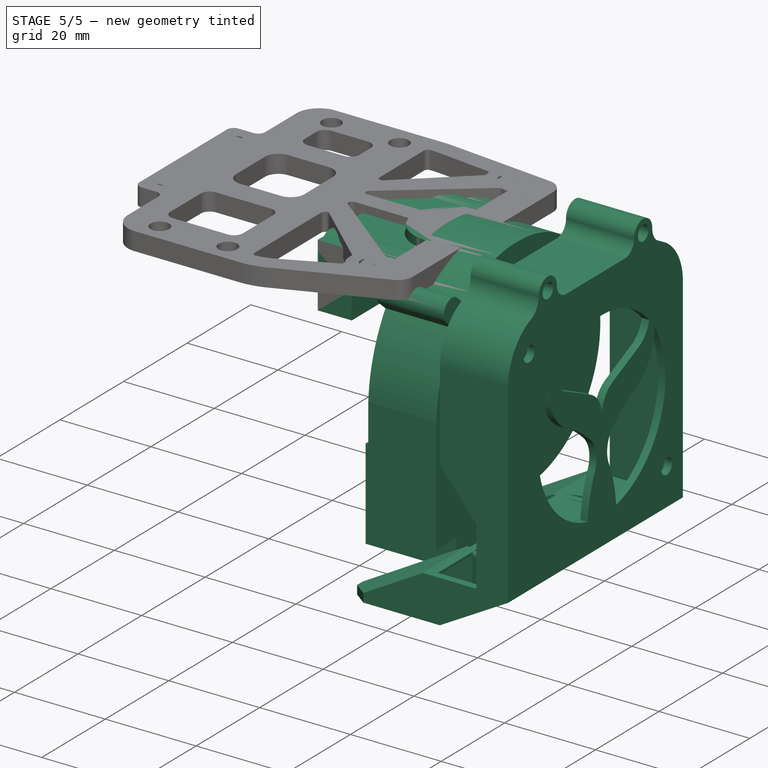
[diagram: stage 5 of 5 — iso view after this stage's code; geometry added in this stage tinted green]
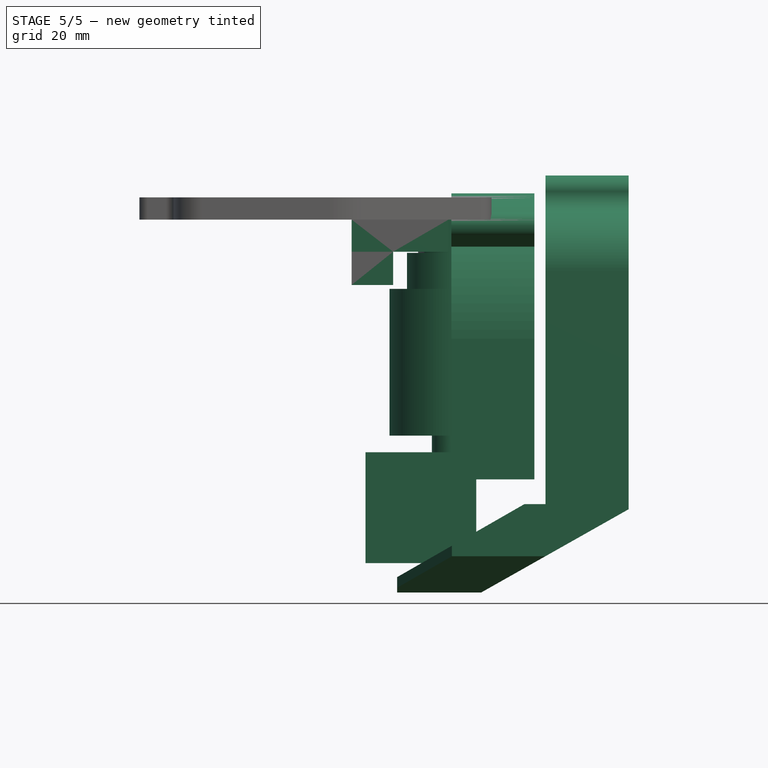
[diagram: stage 5 of 5 — front view after this stage's code; geometry added in this stage tinted green]
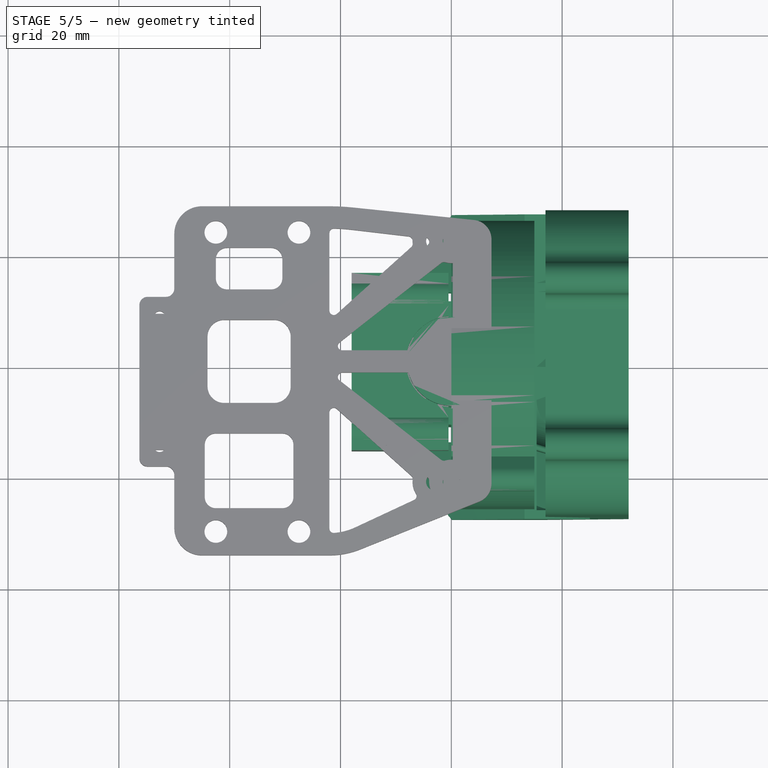
[diagram: stage 5 of 5 — top view after this stage's code; geometry added in this stage tinted green]
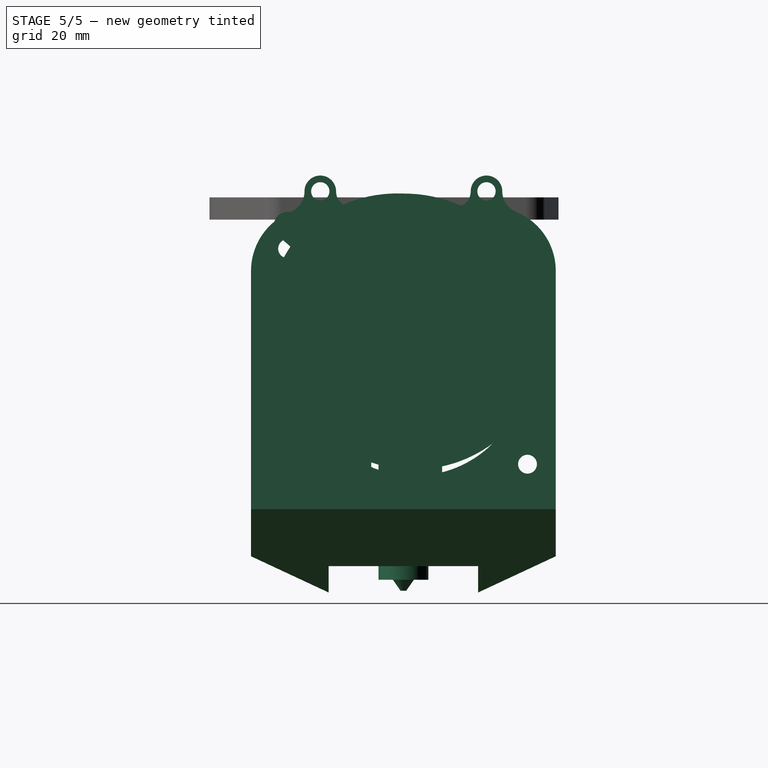
[diagram: stage 5 of 5 — right view after this stage's code; geometry added in this stage tinted green]
FEATURE [Sketcher::SketchObject] Sketch015
  FullyConstrained = true
  MapMode = 5
  Placement = pos=(0,0,0) rot=(0.57735,0.57735,0.57735;2.0944rad)
  Support = -> [YZ_Plane002]
  sketch-geometry (17):
    g0: LineSegment StartX=0 StartY=4 StartZ=0 EndX=8 EndY=4 EndZ=0
    g1: LineSegment StartX=8 StartY=4 StartZ=0 EndX=8 EndY=0 EndZ=0
    g2: LineSegment StartX=8 StartY=0 StartZ=0 EndX=6 EndY=0 EndZ=0
    g3: LineSegment StartX=6 StartY=0 StartZ=0 EndX=6 EndY=-6 EndZ=0
    g4: LineSegment StartX=6 StartY=-6 StartZ=0 EndX=8 EndY=-6 EndZ=0
    g5: LineSegment StartX=8 StartY=-6 StartZ=0 EndX=8 EndY=-12.5 EndZ=0
    g6: LineSegment StartX=8 StartY=-12.5 StartZ=0 EndX=11.15 EndY=-12.5 EndZ=0
    g7: LineSegment StartX=11.15 StartY=-12.5 StartZ=0 EndX=11.15 EndY=-39 EndZ=0
    g8: LineSegment StartX=11.15 StartY=-39 StartZ=0 EndX=3.5 EndY=-39 EndZ=0
    g9: LineSegment StartX=0.5 StartY=-67 StartZ=0 EndX=0 EndY=-67 EndZ=0
    g10: LineSegment StartX=3.5 StartY=-39 StartZ=0 EndX=3.5 EndY=-62 EndZ=0
    g11: LineSegment StartX=0 StartY=4 StartZ=0 EndX=0 EndY=-67 EndZ=0
    g12: GeomPoint X=3.5 Y=-42 Z=0
    g13: LineSegment StartX=3.5 StartY=-62 StartZ=0 EndX=4.5 EndY=-62 EndZ=0
    g14: LineSegment StartX=4.5 StartY=-62 StartZ=0 EndX=4.5 EndY=-65 EndZ=0
    g15: LineSegment StartX=4.5 StartY=-65 StartZ=0 EndX=1.90042 EndY=-65 EndZ=0
    g16: LineSegment StartX=1.90042 StartY=-65 StartZ=0 EndX=0.5 EndY=-67 EndZ=0
  constraints (50):
    c: PointOnObject(g0,g-2)
    c: Horizontal(g0)
    c: Coincident(g1,g0)
    c: Vertical(g1)
    c: Coincident(g2,g1)
    c: Coincident(g3,g2)
    c: Coincident(g4,g3)
    c: Horizontal(g4)
    c: Horizontal(g2)
    c: Distance(g0) = 8
    c: Distance(g1) = 4
    c: Distance(g3) = 6
    c: Distance(g2) = 2
    c: Distance(g4) = 2
    c: Coincident(g5,g4)
    c: Horizontal(g6)
    c: Coincident(g7,g6)
    c: Vertical(g7)
    c: Vertical(g5)
    c: Coincident(g6,g5)
    c: DistanceX(g-2,g6) = 11.15
    c: Coincident(g8,g7)
    c: Horizontal(g8)
    c: DistanceX(g-2,g8) = 3.5
    c: DistanceY(g7,g0) = 43
    c: Distance(g5) = 6.5
    c: PointOnObject(g9,g-2)
    c: Horizontal(g9)
    c: Distance(g9) = 0.5
    c: Coincident(g10,g8)
    c: Vertical(g10)
    c: Coincident(g11,g0)
    c: Coincident(g11,g9)
    c: Vertical(g3)
    c: PointOnObject(g2,g-1)
    c: PointOnObject(g12,g10)
    c: Distance(g12,g8) = 3
    c: Distance(g12,g10) = 20
    c: Coincident(g10,g13)
    c: Horizontal(g13)
    c: Coincident(g13,g14)
    c: Vertical(g14)
    c: Coincident(g14,g15)
    c: Horizontal(g15)
    c: Coincident(g15,g16)
    c: Coincident(g16,g9)
    c: Angle(g16,g15) = 2.18166
    c: Distance(g13) = 1
    c: DistanceY(g9,g13) = 5
    c: Distance(g14) = 3
FEATURE [PartDesign::Revolution] Revolution
  Angle = 360
  Axis = (-2e-16,3e-16,1)
  Base = (0,0,0)
  Placement = pos=(0,0,0) rot=(0.57735,0.57735,0.57735;2.0944rad)
  Profile = -> Sketch015
  ReferenceAxis = -> Sketch015 [V_Axis]
  Reversed = true
FEATURE [Sketcher::SketchObject] Sketch016
  ExternalGeometry = -> [Revolution]
  FullyConstrained = true
  MapMode = 5
  Placement = pos=(0,0,0) rot=(1,0,0;1.5708rad)
  Support = -> [XZ_Plane002]
  sketch-geometry (6):
    g0: LineSegment StartX=-3.5 StartY=-62 StartZ=0 EndX=-15.5 EndY=-62 EndZ=0
    g1: LineSegment StartX=-15.5 StartY=-62 StartZ=0 EndX=-15.5 EndY=-42 EndZ=0
    g2: LineSegment StartX=-15.5 StartY=-42 StartZ=0 EndX=4.5 EndY=-42 EndZ=0
    g3: LineSegment StartX=4.5 StartY=-42 StartZ=0 EndX=4.5 EndY=-62 EndZ=0
    g4: LineSegment StartX=4.5 StartY=-62 StartZ=0 EndX=3.5 EndY=-62 EndZ=0
    g5: LineSegment StartX=-3.5 StartY=-62 StartZ=0 EndX=3.5 EndY=-62 EndZ=0
  constraints (16):
    c: Coincident(g0,g-3)
    c: Horizontal(g0)
    c: Coincident(g1,g0)
    c: Vertical(g1)
    c: Coincident(g2,g1)
    c: Horizontal(g2)
    c: Coincident(g3,g2)
    c: Vertical(g3)
    c: Coincident(g4,g3)
    c: Coincident(g4,g-3)
    c: Horizontal(g4)
    c: Distance(g3) = 20
    c: Distance(g1,g2) = 20
    c: DistanceX(g-2,g0) = -15.5
    c: Coincident(g5,g0)
    c: Coincident(g5,g4)
FEATURE [PartDesign::Pad] Pad006  label="薄"
  BaseFeature = -> Revolution
  Direction = (0,-1,-2e-16)
  Length = 4.5
  Length2 = 10
  Placement = pos=(0,0,0) rot=(0.57735,0.57735,0.57735;2.0944rad)
  Profile = -> Sketch016
  ReferenceAxis = -> Sketch016 [N_Axis]
  Type = 0
FEATURE [PartDesign::Pad] Pad007  label="厚"
  BaseFeature = -> Pad006
  Direction = (0,-1,-2e-16)
  Length = 7
  Length2 = 10
  Placement = pos=(0,0,0) rot=(0.57735,0.57735,0.57735;2.0944rad)
  Profile = -> Sketch016
  ReferenceAxis = -> Sketch016 [N_Axis]
  Reversed = true
  Type = 0
FEATURE [PartDesign::Body] Body002  label="E3DV6火山（玻璃热敏）"
  Group = -> [Sketch015,Revolution,Sketch016,Pad006,Pad007]
  Origin = -> Origin002
  Placement = pos=(-3,0,0) rot=(0,0,1;0rad)
  Tip = -> Pad007
FEATURE [Part::Feature] Part__Feature166  label="<unrecoverable-encoding: 13 bytes cea2d18dd09ecebbbfaab9d6... md5=9adbc4b6>A125V003"
  Placement = pos=(23.9,-14.5,21.31) rot=(0,0,-1;1.5708rad)
  shape: bbox 13.5 x 14.59 x 5.62 mm, 42 faces (baked)
FEATURE [Part::Feature] Part__Feature167  label="MGN12H»¬¿002"
  Placement = pos=(0,-19,0) rot=(0,-1,0;1.5708rad)
  shape: bbox 45.4 x 10 x 27 mm, 34 faces (baked)
FEATURE [Part::Feature] Part__Feature169  label="ɢɈ¹ܰ²װ°"
  Placement = pos=(0,-19.5,16.5) rot=(0,0,1;0rad)
  shape: bbox 54 x 39 x 4 mm, 68 faces (baked)
FEATURE [Part::Feature] Part__Feature172  label="同步带压片"
  Placement = pos=(-16,-29,21) rot=(0,0,1;0rad)
  shape: bbox 8 x 16 x 3 mm, 12 faces (baked)
FEATURE [Part::Feature] Part__Feature173  label="同步带压片001"
  Placement = pos=(16,-29,21) rot=(0,1,0;3.14159rad)
  shape: bbox 8 x 16 x 3 mm, 12 faces (baked)
FEATURE [Part::Feature] Part__Feature174  label="42步进电机004"
  Placement = pos=(-3.675,23.5,12.5) rot=(0,0,1;0rad)
  shape: bbox 42.3 x 44.3 x 62 mm, 50 faces (baked)
FEATURE [Part::Feature] Part__Feature175  label="42步进电机支架"
  Placement = pos=(-3.675,23.5,14.5) rot=(0,0,1;0rad)
  shape: bbox 63 x 45 x 40 mm, 42 faces (baked)
FEATURE [Part::Feature] Part__Feature176  label="MGN12H滑筷棯接颁灅住"
  Placement = pos=(0,0,0) rot=(0.57735,-0.57735,-0.57735;2.0944rad)
  shape: bbox 63 x 6 x 28 mm, 64 faces (baked)
FEATURE [Part::Feature] Part__Feature177  label="BMG挤出机"
  Placement = pos=(0,2.35,37) rot=(0,0,1;0rad)
  shape: bbox 58 x 75 x 33.5 mm, 84 faces (baked)
FEATURE [Part::Feature] Part__Feature179  label="内六角平圆头螺钉M3¡Á029"
  Placement = pos=(0,-3,18.5) rot=(1,0,0;1.5708rad)
  shape: bbox 6.17 x 6.17 x 12.2 mm, 24 faces (baked)
FEATURE [Part::Feature] Part__Feature180  label="内六角平圆头螺钉M3¡Á030"
  Placement = pos=(15,-3,18.5) rot=(1,0,0;1.5708rad)
  shape: bbox 6.17 x 6.17 x 12.2 mm, 24 faces (baked)
FEATURE [Part::Feature] Part__Feature178  label="内六角平圆头螺钉M3¡Á028"
  Placement = pos=(-15,-3,18.5) rot=(1,0,0;1.5708rad)
  shape: bbox 6.17 x 6.17 x 12.2 mm, 24 faces (baked)
FEATURE [App::Part] CR10________________________1  label="CR10近程喷嘴模块1"
  Group = -> [Part__Feature166,Part__Feature167,Part__Feature169,Part__Feature172,Part__Feature173,Part__Feature174,Part__Feature175,Part__Feature176,Part__Feature177,Part__Feature178,Part__Feature179,Part__Feature180]
  Origin = -> Origin006
  Placement = pos=(-36.5,0,8.1) rot=(0.57735,0.57735,0.57735;2.0944rad)
FEATURE [Sketcher::SketchObject] Sketch017
  FullyConstrained = true
  MapMode = 5
  Placement = pos=(0,0,0) rot=(0.57735,0.57735,0.57735;2.0944rad)
  Support = -> [YZ_Plane007]
  sketch-geometry (18):
    g0: LineSegment StartX=-16 StartY=2.25 StartZ=0 EndX=-16 EndY=0 EndZ=0
    g1: LineSegment StartX=-16 StartY=0 StartZ=0 EndX=-16 EndY=-5.8 EndZ=0
    g2: LineSegment StartX=-16 StartY=-5.8 StartZ=0 EndX=-16 EndY=-11.8 EndZ=0
    g3: LineSegment StartX=-16 StartY=-11.8 StartZ=0 EndX=16 EndY=-11.8 EndZ=0
    g4: LineSegment StartX=16 StartY=-11.8 StartZ=0 EndX=16 EndY=-5.8 EndZ=0
    g5: LineSegment StartX=16 StartY=-5.8 StartZ=0 EndX=16 EndY=0 EndZ=0
    g6: LineSegment StartX=16 StartY=0 StartZ=0 EndX=16 EndY=2.25 EndZ=0
    g7: Circle CenterX=-7 CenterY=-8.9 CenterZ=0 NormalX=0 NormalY=0 NormalZ=1 AngleXU=0 Radius=1.8
    g8: Circle CenterX=7 CenterY=-8.9 CenterZ=0 NormalX=0 NormalY=0 NormalZ=1 AngleXU=0 Radius=1.8
    g9: Circle CenterX=-12.1 CenterY=-0.2 CenterZ=0 NormalX=0 NormalY=0 NormalZ=1 AngleXU=0 Radius=1.8
    g10: Circle CenterX=12.1 CenterY=-0.2 CenterZ=0 NormalX=0 NormalY=0 NormalZ=1 AngleXU=0 Radius=1.8
    g11: ArcOfCircle CenterX=-12.1 CenterY=-0.2 CenterZ=0 NormalX=0 NormalY=0 NormalZ=1 AngleXU=0 Radius=3.15 StartAngle=0.891123 EndAngle=2.25047
    g12: ArcOfCircle CenterX=12.1 CenterY=-0.2 CenterZ=0 NormalX=0 NormalY=0 NormalZ=1 AngleXU=0 Radius=3.15 StartAngle=0.891123 EndAngle=2.25047
    g13: LineSegment StartX=-14.0799 StartY=2.25 StartZ=0 EndX=-16 EndY=2.25 EndZ=0
    g14: LineSegment StartX=10.1201 StartY=2.25 StartZ=0 EndX=-10.1201 EndY=2.25 EndZ=0
    g15: LineSegment StartX=14.0799 StartY=2.25 StartZ=0 EndX=16 EndY=2.25 EndZ=0
    g16: LineSegment StartX=10.1201 StartY=2.25 StartZ=0 EndX=14.0799 EndY=2.25 EndZ=0
    g17: LineSegment StartX=-14.0799 StartY=2.25 StartZ=0 EndX=-10.1201 EndY=2.25 EndZ=0
  constraints (49):
    c: Vertical(g0)
    c: Coincident(g0,g1)
    c: Vertical(g1)
    c: Coincident(g1,g2)
    c: Vertical(g2)
    c: Coincident(g2,g3)
    c: Coincident(g3,g4)
    c: Vertical(g4)
    c: Coincident(g4,g5)
    c: Vertical(g5)
    c: Coincident(g5,g6)
    c: Vertical(g6)
    c: Coincident(g13,g0)
    c: Equal(g2,g4)
    c: Equal(g5,g1)
    c: Symmetric(g3,g2,g-2)
    c: PointOnObject(g5,g-1)
    c: Distance(g5) = 5.8
    c: Distance(g4) = 6
    c: Equal(g8,g7)
    c: Symmetric(g8,g7,g-2)
    c: Distance(g7,g8) = 14
    c: Diameter(g8) = 3.6
    c: Distance(g8,g3) = 2.9
    c: Symmetric(g10,g9,g-2)
    c: Equal(g10,g9)
    c: Distance(g10,g9) = 24.2
    c: Diameter(g10) = 3.6
    c: DistanceY(g8,g10) = 8.7
    c: Distance(g0) = 2.25
    c: Coincident(g11,g9)
    c: Coincident(g12,g10)
    c: Equal(g12,g11)
    c: Diameter(g12) = 6.3
    c: Coincident(g14,g11)
    c: Coincident(g14,g12)
    c: Distance(g0,g6) = 32
    c: Equal(g6,g0)
    c: Coincident(g15,g12)
    c: Coincident(g15,g6)
    c: Horizontal(g15)
    c: Horizontal(g13)
    c: Coincident(g16,g12)
    c: Coincident(g16,g12)
    c: Horizontal(g16)
    c: Coincident(g17,g11)
    c: Coincident(g17,g11)
    c: Horizontal(g17)
    c: Coincident(g11,g13)
FEATURE [PartDesign::Pad] Pad008
  Direction = (1,-2e-16,3e-16)
  Length = 18
  Length2 = 10
  Placement = pos=(0,0,0) rot=(0.57735,0.57735,0.57735;2.0944rad)
  Profile = -> Sketch017
  ReferenceAxis = -> Sketch017 [N_Axis]
  Reversed = true
  Type = 0
FEATURE [Sketcher::SketchObject] Sketch018
  ExternalGeometry = -> [Pad008]
  FullyConstrained = true
  MapMode = 5
  Placement = pos=(0,0,0) rot=(0.57735,0.57735,0.57735;2.0944rad)
  Support = -> [Pad008]
  sketch-geometry (4):
    g0: LineSegment StartX=-16 StartY=-5.8 StartZ=0 EndX=16 EndY=-5.8 EndZ=0
    g1: LineSegment StartX=16 StartY=-5.8 StartZ=0 EndX=16 EndY=-11.8 EndZ=0
    g2: LineSegment StartX=16 StartY=-11.8 StartZ=0 EndX=-16 EndY=-11.8 EndZ=0
    g3: LineSegment StartX=-16 StartY=-11.8 StartZ=0 EndX=-16 EndY=-5.8 EndZ=0
  constraints (11):
    c: Coincident(g0,g1)
    c: Coincident(g1,g2)
    c: Coincident(g2,g3)
    c: Coincident(g3,g0)
    c: Horizontal(g0)
    c: Horizontal(g2)
    c: Vertical(g1)
    c: Vertical(g3)
    c: Coincident(g-3,g1)
    c: Equal(g2,g-3)
    c: Distance(g1) = 6
FEATURE [PartDesign::Pocket] Pocket
  BaseFeature = -> Pad008
  Direction = (-1,4e-16,-4e-16)
  Length = 10.5
  Length2 = 5
  Placement = pos=(0,0,0) rot=(0.57735,0.57735,0.57735;2.0944rad)
  Profile = -> Sketch018
  ReferenceAxis = -> Sketch018 [N_Axis]
  Type = 0
FEATURE [Sketcher::SketchObject] Sketch019
  ExternalGeometry = -> [Pocket]
  FullyConstrained = true
  MapMode = 5
  Placement = pos=(-6e-16,1e-15,2.25) rot=(0,0,-1;1.5708rad)
  Support = -> [Pocket]
  sketch-geometry (2):
    g0: ArcOfCircle CenterX=0 CenterY=2e-15 CenterZ=0 NormalX=0 NormalY=0 NormalZ=1 AngleXU=0 Radius=6.2 StartAngle=3.14159 EndAngle=6.28319
    g1: LineSegment StartX=-6.2 StartY=2.8e-15 StartZ=0 EndX=6.2 EndY=5e-16 EndZ=0
  constraints (7):
    c: PointOnObject(g0,g-2)
    c: PointOnObject(g0,g-3)
    c: PointOnObject(g0,g-3)
    c: PointOnObject(g0,g-3)
    c: Coincident(g1,g0)
    c: Coincident(g1,g0)
    c: Diameter(g0) = 12.4
FEATURE [PartDesign::Pocket] Pocket001
  BaseFeature = -> Pocket
  Direction = (7e-16,-7e-16,-1)
  Length = 5
  Length2 = 5
  Placement = pos=(0,0,0) rot=(0.57735,0.57735,0.57735;2.0944rad)
  Profile = -> Sketch019
  ReferenceAxis = -> Sketch019 [N_Axis]
  Type = 1
FEATURE [Sketcher::SketchObject] Sketch020
  ExternalGeometry = -> [Pocket001]
  FullyConstrained = true
  MapMode = 5
  Placement = pos=(-6e-16,1e-15,2.25) rot=(0,0,-1;1.5708rad)
  Support = -> [Pocket001]
  sketch-geometry (3):
    g0: LineSegment StartX=-6.2 StartY=2.4e-15 StartZ=0 EndX=6.2 EndY=-1.1e-15 EndZ=0
    g1: ArcOfCircle CenterX=0 CenterY=6e-16 CenterZ=0 NormalX=0 NormalY=0 NormalZ=1 AngleXU=0 Radius=8.2 StartAngle=3.14159 EndAngle=6.28319
    g2: LineSegment StartX=-8.2 StartY=2.9e-15 StartZ=0 EndX=8.2 EndY=-1.4e-15 EndZ=0
  constraints (9):
    c: Coincident(g0,g-4)
    c: Coincident(g0,g-3)
    c: PointOnObject(g1,g-2)
    c: PointOnObject(g1,g-3)
    c: PointOnObject(g1,g-4)
    c: PointOnObject(g1,g0)
    c: Diameter(g1) = 16.4
    c: Coincident(g2,g1)
    c: Coincident(g2,g1)
FEATURE [PartDesign::Pocket] Pocket002
  BaseFeature = -> Pocket001
  Direction = (1.1e-15,-8e-16,-1)
  Length = 2.25
  Length2 = 5
  Placement = pos=(0,0,0) rot=(0.57735,0.57735,0.57735;2.0944rad)
  Profile = -> Sketch020
  ReferenceAxis = -> Sketch020 [N_Axis]
  Type = 0
FEATURE [Sketcher::SketchObject] Sketch
  FullyConstrained = true
  MapMode = 5
  Placement = pos=(0,0,0) rot=(0.57735,0.57735,0.57735;2.0944rad)
  Support = -> [Pocket002]
  sketch-geometry (4):
    g0: LineSegment StartX=-19.6231 StartY=8.25432 StartZ=0 EndX=19.6394 EndY=8.25432 EndZ=0
    g1: LineSegment StartX=19.6394 StartY=8.25432 StartZ=0 EndX=19.6394 EndY=-15.6805 EndZ=0
    g2: LineSegment StartX=19.6394 StartY=-15.6805 StartZ=0 EndX=-19.6231 EndY=-15.6805 EndZ=0
    g3: LineSegment StartX=-19.6231 StartY=-15.6805 StartZ=0 EndX=-19.6231 EndY=8.25432 EndZ=0
  constraints (12):
    c: Coincident(g0,g1)
    c: Coincident(g1,g2)
    c: Coincident(g2,g3)
    c: Coincident(g3,g0)
    c: Horizontal(g0)
    c: Horizontal(g2)
    c: Vertical(g1)
    c: Vertical(g3)
    c: DistanceX(g0) = -19.6231
    c: DistanceY(g0) = 8.25432
    c: DistanceX(g1) = 19.6394
    c: DistanceY(g1) = -15.6805
FEATURE [PartDesign::Pocket] Pocket003
  BaseFeature = -> Pocket002
  Direction = (-1,1.1e-15,-7e-16)
  Length = 0.5
  Length2 = 5
  Placement = pos=(0,0,0) rot=(0.57735,0.57735,0.57735;2.0944rad)
  Profile = -> Sketch
  ReferenceAxis = -> Sketch [N_Axis]
  Type = 0
FEATURE [PartDesign::Body] Body003  label="贴墙端"
  Group = -> [Sketch017,Pad008,Sketch018,Pocket,Sketch019,Pocket001,Sketch020,Pocket002,Sketch,Pocket003]
  Origin = -> Origin007
  Tip = -> Pocket003
FEATURE [Part::Feature] Part__Feature  label="5015µ¼·耚"
  Placement = pos=(22.5,0,-13.2) rot=(0.57735,0.57735,0.57735;2.0944rad)
  shape: bbox 38.35 x 55 x 131 mm, 194 faces (baked)
FEATURE [Sketcher::SketchObject] Sketch021
  FullyConstrained = false
  MapMode = 5
  Placement = pos=(0,0,0) rot=(0.57735,0.57735,0.57735;2.0944rad)
  Support = -> [YZ_Plane]
  sketch-geometry (17):
    g0: LineSegment StartX=-25.8 StartY=-46.9 StartZ=0 EndX=-5.8 EndY=-46.9 EndZ=0
    g1: LineSegment StartX=-5.8 StartY=-46.9 StartZ=0 EndX=-5.8 EndY=-43.8256 EndZ=0
    g2: LineSegment StartX=-25.8 StartY=-46.9 StartZ=0 EndX=-25.8 EndY=-21.5 EndZ=0
    g3: ArcOfCircle CenterX=1.9 CenterY=-21.2 CenterZ=0 NormalX=0 NormalY=0 NormalZ=1 AngleXU=0 Radius=23.9 StartAngle=4.38436 EndAngle=5.45674
    g4: ArcOfCircle CenterX=1.9 CenterY=-21.2 CenterZ=0 NormalX=0 NormalY=0 NormalZ=1 AngleXU=0 Radius=23.9 StartAngle=5.66632 EndAngle=6.28319
    g5: LineSegment StartX=21.3952 StartY=-35.0256 StartZ=0 EndX=23.5516 EndY=-36.9232 EndZ=0
    g6: LineSegment StartX=18.0921 StartY=-38.7792 StartZ=0 EndX=20.2484 EndY=-40.6768 EndZ=0
    g7: LineSegment StartX=-20.3952 StartY=-4.87439 StartZ=0 EndX=-22.5516 EndY=-2.97678 EndZ=0
    g8: ArcOfCircle CenterX=-20.9 CenterY=-1.1 CenterZ=0 NormalX=0 NormalY=0 NormalZ=1 AngleXU=0 Radius=2.5 StartAngle=0.849141 EndAngle=3.99073
    g9: ArcOfCircle CenterX=21.9 CenterY=-38.8 CenterZ=0 NormalX=0 NormalY=0 NormalZ=1 AngleXU=0 Radius=2.5 StartAngle=3.99073 EndAngle=7.13233
    g10: LineSegment StartX=-19.2484 StartY=0.776784 StartZ=0 EndX=-17.0921 EndY=-1.12083 EndZ=0
    g11: ArcOfCircle CenterX=0.0547185 CenterY=-21.0457 CenterZ=0 NormalX=0 NormalY=0 NormalZ=1 AngleXU=0 Radius=25.7457 StartAngle=6.27719 EndAngle=7.85611
    g12: ArcOfCircle CenterX=-1.06983 CenterY=-20.1632 CenterZ=0 NormalX=0 NormalY=0 NormalZ=1 AngleXU=0 Radius=24.8862 StartAngle=1.52779 EndAngle=2.27027
    g13: ArcOfCircle CenterX=7.23359 CenterY=-23.0475 CenterZ=0 NormalX=0 NormalY=0 NormalZ=1 AngleXU=0 Radius=33.0698 StartAngle=2.55978 EndAngle=3.09478
    g14: GeomPoint X=21.9 Y=-41.3 Z=0
    g15: LineSegment StartX=25.8 StartY=-21.2 StartZ=0 EndX=0 EndY=-21.2 EndZ=0
    g16: LineSegment StartX=-25.8 StartY=-21.5 StartZ=0 EndX=0 EndY=-21.5 EndZ=0
  constraints (49):
    c: Coincident(g0,g1)
    c: Vertical(g1)
    c: Coincident(g0,g2)
    c: Distance(g0) = 20
    c: Coincident(g4,g3)
    c: Distance(g2) = 25.4
    c: Coincident(g4,g5)
    c: Coincident(g3,g6)
    c: Parallel(g6,g5)
    c: Coincident(g1,g3)
    c: Horizontal(g0)
    c: Vertical(g2)
    c: DistanceY(g3) = -21.2
    c: Tangent(g9,g5) = 1.5708
    c: Tangent(g8,g7) = 1.5708
    c: Tangent(g9,g6) = -1.5708
    c: DistanceX(g8,g3) = 22.8
    c: Equal(g5,g6)
    c: DistanceX(g0,g3) = 27.7
    c: DistanceX(g3,g9) = 20
    c: DistanceY(g3,g8) = 20.1
    c: Equal(g9,g8)
    c: Parallel(g7,g10)
    c: Equal(g10,g7)
    c: Tangent(g10,g8) = 1.5708
    c: Equal(g3,g4)
    c: Coincident(g11,g4)
    c: Coincident(g12,g11)
    c: Coincident(g12,g10)
    c: DistanceY(g0,g11) = 51.6
    c: PointOnObject(g11,g-2)
    c: Horizontal(g4,g3)
    c: DistanceX(g0,g4) = 51.6
    c: DistanceY(g9,g4) = 17.6
    c: Parallel(g7,g6)
    c: Coincident(g13,g7)
    c: Coincident(g13,g2)
    c: Diameter(g9) = 5
    c: Equal(g6,g7)
    c: PointOnObject(g14,g9)
    c: Vertical(g14,g9)
    c: DistanceY(g0,g14) = 5.6
    c: Coincident(g15,g4)
    c: PointOnObject(g15,g-2)
    c: Horizontal(g15)
    c: Coincident(g16,g2)
    c: PointOnObject(g16,g-2)
    c: Horizontal(g16)
    c: Equal(g15,g16)
FEATURE [PartDesign::Pad] Pad
  Direction = (1,-2e-16,3e-16)
  Length = 15
  Length2 = 10
  Placement = pos=(0,0,0) rot=(0.57735,0.57735,0.57735;2.0944rad)
  Profile = -> Sketch021
  ReferenceAxis = -> Sketch021 [N_Axis]
  Type = 0
FEATURE [PartDesign::Mirrored] Mirrored
  BaseFeature = -> Pad057
  MirrorPlane = -> Pad057 [Face34]
  Originals = -> [Pad057]
  Placement = pos=(0,0,0) rot=(0.57735,0.57735,0.57735;2.0944rad)
FEATURE [Part::Fuse] Fusion001  label="导风道"
  Base = -> Body016
  Placement = pos=(32,0,-51.35) rot=(0,0,1;0rad)
  Tool = -> Fusion
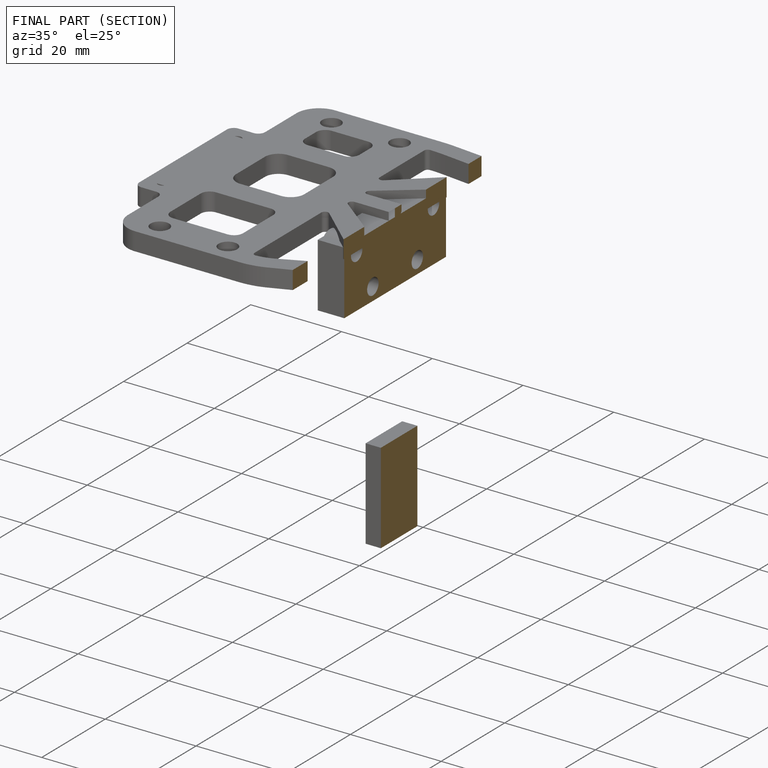
[diagram: finished part — half-section view (interior)]
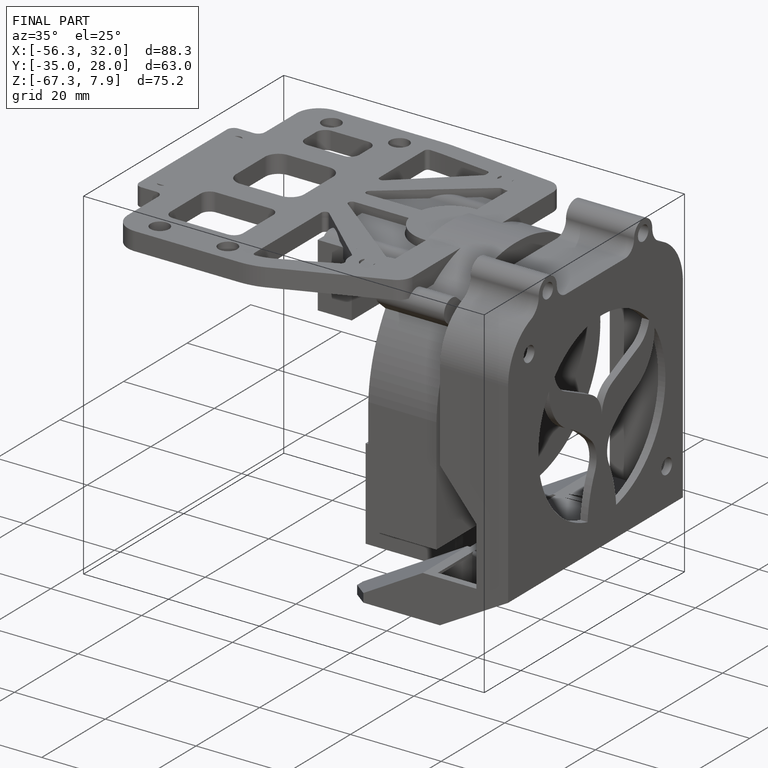
[diagram: finished part — iso view with bounding-box wireframe]
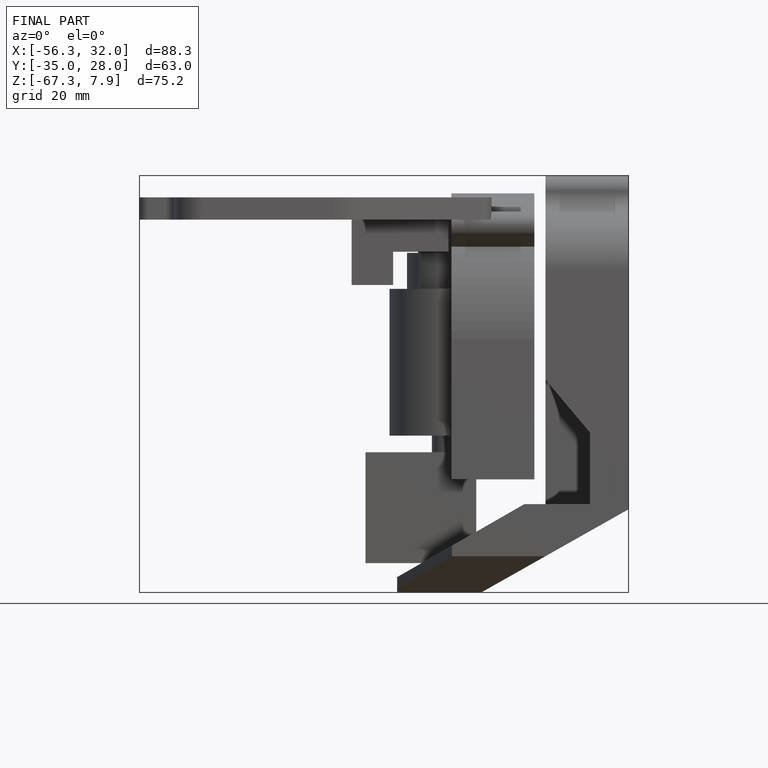
[diagram: finished part — front view with bounding-box wireframe]
